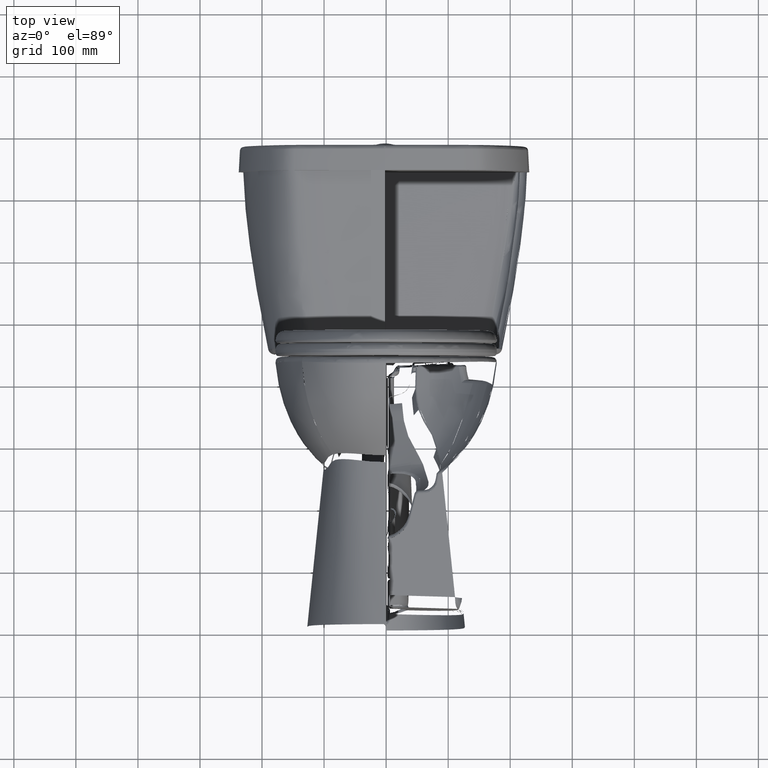
[diagram: clean part render]
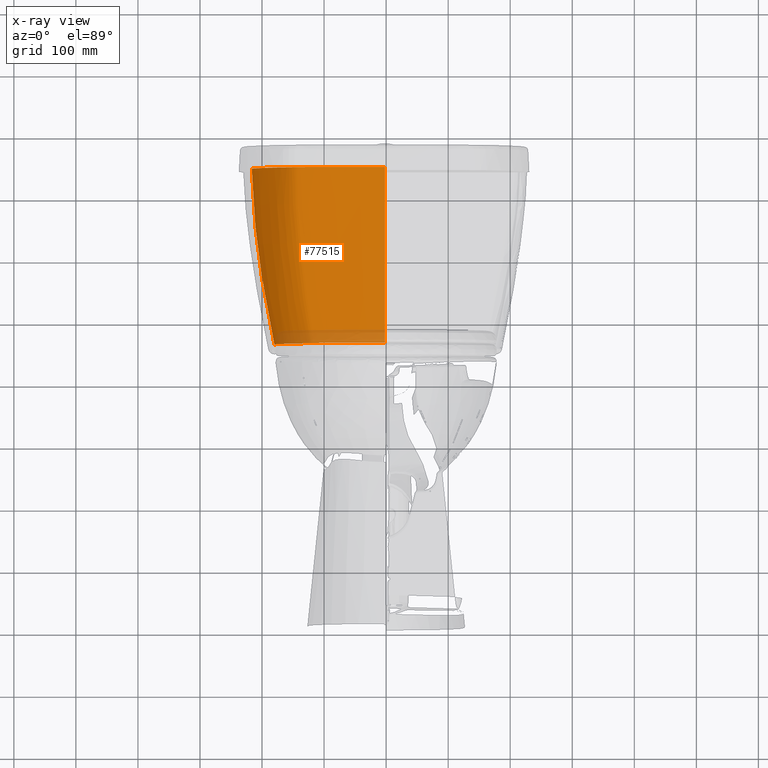
[diagram: x-ray — body ghosted, one internal face saturated and labeled with its STEP entity id]
A machine part, top view, then the same camera in x-ray: the body is ghosted and one INTERNAL B-rep face — a face not visible from any outside direction — is saturated and labeled: STEP entity #77515.
In plain terms, the highlighted face is a freeform B-spline surface patch.
Its self-contained STEP definition (entity closure, byte-faithful):
#97 = CARTESIAN_POINT ( 'NONE',  ( -4.417262187753443900, 8.835199273874794200, 29.55653996814981000 ) ) ;
#369 = CARTESIAN_POINT ( 'NONE',  ( -4.726152149578740400, 9.081204974369686800, 24.38536275855866000 ) ) ;
#410 = ORIENTED_EDGE ( 'NONE', *, *, #194658, .T. ) ;
#468 = CARTESIAN_POINT ( 'NONE',  ( -4.550617941806086400, 9.386305528800788200, 18.39885912971952900 ) ) ;
#734 = CARTESIAN_POINT ( 'NONE',  ( -4.278940042473919000, 8.824648377192396300, 29.55669977662424900 ) ) ;
#873 = CARTESIAN_POINT ( 'NONE',  ( -5.993922006456692500, 9.184879992817322100, 29.55320490457125600 ) ) ;
#941 = EDGE_CURVE ( 'NONE', #36166, #161220, #24696, .T. ) ;
#1007 = CARTESIAN_POINT ( 'NONE',  ( -7.261666225578741400, 13.83803789436968800, 19.29648230255866200 ) ) ;
#1141 = CARTESIAN_POINT ( 'NONE',  ( -0.06933588969177494100, 8.868155873617737900, 23.95379941567481200 ) ) ;
#1440 = ORIENTED_EDGE ( 'NONE', *, *, #74489, .T. ) ;
#1655 = CARTESIAN_POINT ( 'NONE',  ( -2.147176727581496400, 9.019511530369685600, 21.38579836755866000 ) ) ;
#1657 = CARTESIAN_POINT ( 'NONE',  ( -5.286015257712112900, 9.966031772616315000, 18.38191341893867700 ) ) ;
#1684 = CARTESIAN_POINT ( 'NONE',  ( -4.026841708629953900, 9.300854802114319100, 18.40285952947754900 ) ) ;
#1719 = CARTESIAN_POINT ( 'NONE',  ( -0.6127366742417331700, 9.085824356511343700, 18.40495721024449000 ) ) ;
#2001 = CARTESIAN_POINT ( 'NONE',  ( -0.4870684748382069200, 8.699424463805691200, 29.55456150517022000 ) ) ;
#2208 = EDGE_CURVE ( 'NONE', #111261, #14673, #64192, .T. ) ;
#2277 = CARTESIAN_POINT ( 'NONE',  ( -4.781477327578740800, 9.375351516369685000, 19.24935866055866300 ) ) ;
#2341 = CARTESIAN_POINT ( 'NONE',  ( -1.044151900040486200, 9.098049844229134200, 18.40476465880379900 ) ) ;
#2490 = ORIENTED_EDGE ( 'NONE', *, *, #66342, .T. ) ;
#2924 = CARTESIAN_POINT ( 'NONE',  ( -6.771842228578741200, 11.98856557136968500, 19.28742932755866200 ) ) ;
#3283 = CARTESIAN_POINT ( 'NONE',  ( -4.476880313307056300, 9.370054282243456700, 18.40011350073544700 ) ) ;
#3562 = CARTESIAN_POINT ( 'NONE',  ( -4.850973108578740400, 9.544801794369684300, 18.27914189755866300 ) ) ;
#3629 = CARTESIAN_POINT ( 'NONE',  ( -0.06687898313162316000, 9.079168769970769000, 18.40514471876067000 ) ) ;
#3630 = CARTESIAN_POINT ( 'NONE',  ( -6.953112045520100500, 10.40949517225543800, 29.55019068841947700 ) ) ;
#4251 = CARTESIAN_POINT ( 'NONE',  ( -2.635696419531892600, 8.741841311468068200, 29.55567267593109900 ) ) ;
#4561 = CARTESIAN_POINT ( 'NONE',  ( -5.019246347702710900, 8.888955014683535400, 29.55611445022103500 ) ) ;
#4695 = CARTESIAN_POINT ( 'NONE',  ( -2.302223418220548100, 9.156377341268365600, 18.40526930175008500 ) ) ;
#4870 = CARTESIAN_POINT ( 'NONE',  ( -4.594224303578740500, 9.411123767369684100, 18.25351353655866400 ) ) ;
#5300 = CARTESIAN_POINT ( 'NONE',  ( -0.06975181525807250300, 8.777751068589884300, 26.74822881916182000 ) ) ;
#5575 = CARTESIAN_POINT ( 'NONE',  ( -6.743481078138302100, 10.08172065734461700, 29.55010217595953700 ) ) ;
#5626 = EDGE_CURVE ( 'NONE', #160807, #95092, #155456, .T. ) ;
#6045 = VERTEX_POINT ( 'NONE', #168408 ) ;
#6079 = CARTESIAN_POINT ( 'NONE',  ( -5.701222970184550000, 9.010136209510987400, 29.55489257358420500 ) ) ;
#6156 = CARTESIAN_POINT ( 'NONE',  ( -4.405966024578741100, 9.366015904369685800, 18.24315959755865900 ) ) ;
#6487 = B_SPLINE_CURVE_WITH_KNOTS ( 'NONE', 3,
 ( #143076, #8040, #112908, #51946, #6079, #23105 ),
 .UNSPECIFIED., .F., .F.,
 ( 4, 2, 4 ),
 ( 0.0000000000000000000, 0.5000000000000000000, 1.000000000000000000 ),
 .UNSPECIFIED. ) ;
#6879 = CARTESIAN_POINT ( 'NONE',  ( -8.268173154851654200, 14.62575394245028300, 25.62698901064866100 ) ) ;
#6905 = CARTESIAN_POINT ( 'NONE',  ( -5.564959569414520000, 8.967024884283631500, 29.55566309722716400 ) ) ;
#6969 = VERTEX_POINT ( 'NONE', #143439 ) ;
#7525 = CARTESIAN_POINT ( 'NONE',  ( -8.269638196809486500, 14.62596688857144000, 25.64085137190551900 ) ) ;
#7554 = CARTESIAN_POINT ( 'NONE',  ( -5.593030429457607900, 8.974341410781960300, 29.55553402991164800 ) ) ;
#8040 = CARTESIAN_POINT ( 'NONE',  ( -5.634218406218884000, 8.986581406398876500, 29.55532335167465200 ) ) ;
#8173 = CARTESIAN_POINT ( 'NONE',  ( -8.515840962717151200, 14.68299359192766900, 29.08540297841443900 ) ) ;
#8427 = CARTESIAN_POINT ( 'NONE',  ( -5.388182492987549900, 8.933186725462634900, 29.55598421990289600 ) ) ;
#8461 = CARTESIAN_POINT ( 'NONE',  ( -7.565230813214938600, 11.59473743594560500, 29.55240527247246600 ) ) ;
#8797 = CARTESIAN_POINT ( 'NONE',  ( -6.308033708826381600, 9.504115083988910600, 29.55154324513583200 ) ) ;
#8825 = CARTESIAN_POINT ( 'NONE',  ( -8.067119218231061600, 14.60412180752426000, 23.94511155207169000 ) ) ;
#9196 = CARTESIAN_POINT ( 'NONE',  ( -5.132739143622255400, 9.796869057232875400, 18.38301660442515100 ) ) ;
#9417 = CARTESIAN_POINT ( 'NONE',  ( -3.353185906577966300, 9.231316932835634100, 18.40497884309920100 ) ) ;
#9462 = CARTESIAN_POINT ( 'NONE',  ( -7.635362155809605900, 14.58925611784779400, 21.14968522266265400 ) ) ;
#9552 = CARTESIAN_POINT ( 'NONE',  ( -5.767105375250555900, 10.56825423417031700, 18.38054243735387800 ) ) ;
#9631 = CARTESIAN_POINT ( 'NONE',  ( -5.677084550578740600, 9.021787339369685900, 28.82753652955866000 ) ) ;
#9786 = CARTESIAN_POINT ( 'NONE',  ( -4.284330810213469400, 9.335896085520213100, 18.40194068895603900 ) ) ;
#10138 = CARTESIAN_POINT ( 'NONE',  ( -3.001831426760241100, 8.754537339842750400, 29.55612341220197000 ) ) ;
#10277 = CARTESIAN_POINT ( 'NONE',  ( -0.5411044955814960900, 8.695272341369685500, 29.63269373055866000 ) ) ;
#10932 = CARTESIAN_POINT ( 'NONE',  ( -6.541727437578740200, 9.790227151369686400, 28.81755590555866700 ) ) ;
#11023 = CARTESIAN_POINT ( 'NONE',  ( -0.06846823717543432100, 8.968853144829148900, 21.17107659340039300 ) ) ;
#11038 = ORIENTED_EDGE ( 'NONE', *, *, #151937, .T. ) ;
#11130 = ORIENTED_EDGE ( 'NONE', *, *, #5626, .T. ) ;
#11144 = B_SPLINE_CURVE_WITH_KNOTS ( 'NONE', 3,
 ( #1719, #105938, #16176, #3629 ),
 .UNSPECIFIED., .F., .F.,
 ( 4, 4 ),
 ( 0.0000000000000000000, 0.9999999505521016700 ),
 .UNSPECIFIED. ) ;
#11430 = CARTESIAN_POINT ( 'NONE',  ( -7.085579152553150600, 14.59351282908907000, 18.37513363553937800 ) ) ;
#11594 = CARTESIAN_POINT ( 'NONE',  ( -3.273298411581496000, 8.792520270369685400, 28.82742994855866300 ) ) ;
#12067 = CARTESIAN_POINT ( 'NONE',  ( -7.580732472938875000, 14.58883198519878900, 20.83982022221812600 ) ) ;
#12228 = CARTESIAN_POINT ( 'NONE',  ( -5.158240198578740300, 8.998333090369685600, 27.18689202255866300 ) ) ;
#12256 = EDGE_CURVE ( 'NONE', #155654, #128064, #115465, .T. ) ;
#12434 = EDGE_CURVE ( 'NONE', #40944, #162635, #25355, .T. ) ;
#12649 = CARTESIAN_POINT ( 'NONE',  ( -4.582398009279478000, 9.395098269976554000, 18.39800244569450500 ) ) ;
#12871 = CARTESIAN_POINT ( 'NONE',  ( -7.080850265989107100, 14.22670205826152500, 18.37596809206920400 ) ) ;
#12880 = CARTESIAN_POINT ( 'NONE',  ( -6.936121323578740700, 10.42013532836968500, 27.18807161055866200 ) ) ;
#13416 = B_SPLINE_CURVE_WITH_KNOTS ( 'NONE', 3,
 ( #38947, #172041, #97943, #113034 ),
 .UNSPECIFIED., .F., .F.,
 ( 4, 4 ),
 ( 0.0000000000000000000, 1.000000000000000000 ),
 .UNSPECIFIED. ) ;
#13536 = CARTESIAN_POINT ( 'NONE',  ( -8.308870624578741400, 13.88764930936968700, 27.19387403655866100 ) ) ;
#13800 = CARTESIAN_POINT ( 'NONE',  ( -2.066876061875919700, 8.726112465497536200, 29.55505119435447600 ) ) ;
#14048 = CARTESIAN_POINT ( 'NONE',  ( -7.012667880179735700, 13.51943146230926200, 18.37744735951051900 ) ) ;
#14178 = CARTESIAN_POINT ( 'NONE',  ( -3.225616492581496100, 8.857666271369685900, 27.18490226455866200 ) ) ;
#14673 = VERTEX_POINT ( 'NONE', #59903 ) ;
#14831 = CARTESIAN_POINT ( 'NONE',  ( -6.340303470578740000, 9.615395643369685900, 27.19276521155866200 ) ) ;
#14988 = CARTESIAN_POINT ( 'NONE',  ( -5.820563128046619500, 9.067157067053484500, 29.55404106676773100 ) ) ;
#15366 = CARTESIAN_POINT ( 'NONE',  ( -5.332104981234194500, 10.01875782867712900, 18.38165397847801000 ) ) ;
#15469 = CARTESIAN_POINT ( 'NONE',  ( -6.359890582578740000, 10.48456457236968700, 21.42962279955866100 ) ) ;
#15606 = CARTESIAN_POINT ( 'NONE',  ( -0.06977486976558999700, 8.821630473137648900, 25.34970909367833900 ) ) ;
#15760 = EDGE_CURVE ( 'NONE', #186058, #69820, #30429, .T. ) ;
#15838 = CARTESIAN_POINT ( 'NONE',  ( -3.629239517476766900, 8.783314053335498500, 29.55668547703504200 ) ) ;
#15946 = B_SPLINE_CURVE_WITH_KNOTS ( 'NONE', 3,
 ( #26366, #175143, #76056, #179700 ),
 .UNSPECIFIED., .F., .F.,
 ( 4, 4 ),
 ( 0.0000000000000000000, 1.000000000000000000 ),
 .UNSPECIFIED. ) ;
#16079 = CARTESIAN_POINT ( 'NONE',  ( -3.232857355567400500, 9.221246130704944500, 18.40524541539265300 ) ) ;
#16094 = B_SPLINE_CURVE_WITH_KNOTS ( 'NONE', 3,
 ( #50367, #123828, #138263, #33358 ),
 .UNSPECIFIED., .F., .F.,
 ( 4, 4 ),
 ( 0.0000000000000000000, 1.000000000000000000 ),
 .UNSPECIFIED. ) ;
#16108 = CARTESIAN_POINT ( 'NONE',  ( -7.152664261578740600, 11.98558548536968600, 21.42919151555866400 ) ) ;
#16176 = CARTESIAN_POINT ( 'NONE',  ( -0.1975648495858503000, 9.079313358093433100, 18.40513700277325200 ) ) ;
#16244 = CARTESIAN_POINT ( 'NONE',  ( -4.867996858865503800, 9.540942073929931800, 18.38741586388991300 ) ) ;
#16572 = B_SPLINE_CURVE_WITH_KNOTS ( 'NONE', 3,
 ( #41538, #178489, #44764, #75517 ),
 .UNSPECIFIED., .F., .F.,
 ( 4, 4 ),
 ( 0.0000000000000000000, 1.000000000000000000 ),
 .UNSPECIFIED. ) ;
#16674 = ORIENTED_EDGE ( 'NONE', *, *, #121684, .T. ) ;
#16752 = CARTESIAN_POINT ( 'NONE',  ( -5.339595521578739400, 9.787340198369685500, 19.28249868555866400 ) ) ;
#16791 = B_SPLINE_CURVE_WITH_KNOTS ( 'NONE', 3,
 ( #79250, #66126, #25550, #146165 ),
 .UNSPECIFIED., .F., .F.,
 ( 4, 4 ),
 ( 0.0000000000000000000, 1.000000000000000000 ),
 .UNSPECIFIED. ) ;
#17075 = CARTESIAN_POINT ( 'NONE',  ( -4.667566845165105800, 8.855730611929926600, 29.55633320850923300 ) ) ;
#17090 = CARTESIAN_POINT ( 'NONE',  ( -0.6985461206657501700, 8.701673856666468900, 29.55456928334762500 ) ) ;
#17197 = ORIENTED_EDGE ( 'NONE', *, *, #164299, .T. ) ;
#17380 = CARTESIAN_POINT ( 'NONE',  ( -5.504730794578740900, 9.965544695369684900, 19.28533930955866200 ) ) ;
#17810 = CARTESIAN_POINT ( 'NONE',  ( -7.325578228831249200, 11.08869243613752300, 29.55141645699173100 ) ) ;
#18031 = CARTESIAN_POINT ( 'NONE',  ( 0.006581893418188977500, 8.851642629369685300, 24.37971165755866200 ) ) ;
#18587 = VERTEX_POINT ( 'NONE', #138114 ) ;
#18676 = CARTESIAN_POINT ( 'NONE',  ( -6.799831006578740400, 12.59621126436968700, 18.29748167055866000 ) ) ;
#19004 = CARTESIAN_POINT ( 'NONE',  ( -4.959680411745575100, 8.882902861378701300, 29.55613744018662100 ) ) ;
#20017 = CARTESIAN_POINT ( 'NONE',  ( -6.677326712413080400, 9.986927948106508500, 29.55019565287834400 ) ) ;
#20721 = EDGE_CURVE ( 'NONE', #117744, #27879, #134717, .T. ) ;
#20846 = VERTEX_POINT ( 'NONE', #189952 ) ;
#20860 = VERTEX_POINT ( 'NONE', #174877 ) ;
#21070 = EDGE_CURVE ( 'NONE', #14673, #38397, #167103, .T. ) ;
#21303 = CARTESIAN_POINT ( 'NONE',  ( -8.391850291897107200, 14.64757322736378800, 26.94856130231164200 ) ) ;
#21686 = CARTESIAN_POINT ( 'NONE',  ( -4.140285619023616800, 8.814950337761841200, 29.55670074416850600 ) ) ;
#22323 = VERTEX_POINT ( 'NONE', #81090 ) ;
#22491 = CARTESIAN_POINT ( 'NONE',  ( -2.635696419531892600, 8.741841311468068200, 29.55567267593109900 ) ) ;
#22592 = CARTESIAN_POINT ( 'NONE',  ( -8.184693972926856600, 14.61488958661455400, 24.87858013061835300 ) ) ;
#23105 = CARTESIAN_POINT ( 'NONE',  ( -5.719400801736013000, 9.017779194289863300, 29.55476069995829000 ) ) ;
#23792 = VERTEX_POINT ( 'NONE', #62751 ) ;
#23883 = CARTESIAN_POINT ( 'NONE',  ( -8.067066248318367300, 14.60411779700153400, 23.94471251384044700 ) ) ;
#24209 = CARTESIAN_POINT ( 'NONE',  ( -4.146236863885847300, 9.316520684413644600, 18.40251462936850000 ) ) ;
#24347 = ORIENTED_EDGE ( 'NONE', *, *, #119465, .T. ) ;
#24527 = CARTESIAN_POINT ( 'NONE',  ( -7.636325129333648900, 14.58926363674536800, 21.15514877038469900 ) ) ;
#24696 = B_SPLINE_CURVE_WITH_KNOTS ( 'NONE', 3,
 ( #175737, #131177, #85949, #71474 ),
 .UNSPECIFIED., .F., .F.,
 ( 4, 4 ),
 ( 0.0000000000000000000, 1.000000000000000000 ),
 .UNSPECIFIED. ) ;
#24704 = CARTESIAN_POINT ( 'NONE',  ( -7.221710644578740500, 10.87768905936968400, 29.62054523455866200 ) ) ;
#24917 = B_SPLINE_CURVE_WITH_KNOTS ( 'NONE', 3,
 ( #110186, #109530, #125925, #184265, #51810, #81936 ),
 .UNSPECIFIED., .F., .F.,
 ( 4, 2, 4 ),
 ( 0.0000000000000000000, 0.5000000000000000000, 1.000000000000000000 ),
 .UNSPECIFIED. ) ;
#25219 = VERTEX_POINT ( 'NONE', #110113 ) ;
#25355 = B_SPLINE_CURVE_WITH_KNOTS ( 'NONE', 3,
 ( #95001, #155993, #66141, #37302 ),
 .UNSPECIFIED., .F., .F.,
 ( 4, 4 ),
 ( 0.0000000000000000000, 1.000000000000000000 ),
 .UNSPECIFIED. ) ;
#25364 = CARTESIAN_POINT ( 'NONE',  ( -6.971223616578740200, 10.42133909236968500, 28.81562318355866400 ) ) ;
#25476 = B_SPLINE_CURVE_WITH_KNOTS ( 'NONE', 3,
 ( #55586, #86407, #100804, #116534, #40511, #145414 ),
 .UNSPECIFIED., .F., .F.,
 ( 4, 2, 4 ),
 ( 0.0000000000000000000, 0.5000000000000000000, 1.000000000000000000 ),
 .UNSPECIFIED. ) ;
#25528 = ORIENTED_EDGE ( 'NONE', *, *, #53330, .T. ) ;
#25550 = CARTESIAN_POINT ( 'NONE',  ( -6.376039596943788200, 11.55928583682334200, 18.38134262127045900 ) ) ;
#25797 = CARTESIAN_POINT ( 'NONE',  ( -8.482646217280597900, 14.42031918908221000, 29.55340962606145900 ) ) ;
#25820 = CARTESIAN_POINT ( 'NONE',  ( -6.369992918184039800, 9.578696247736235800, 29.55117137763229000 ) ) ;
#25847 = CARTESIAN_POINT ( 'NONE',  ( -7.510491384747820300, 14.58865411958089500, 20.45340443194434600 ) ) ;
#26366 = CARTESIAN_POINT ( 'NONE',  ( -3.779953884164973100, 9.271666381298688400, 18.40370294031455600 ) ) ;
#26456 = CARTESIAN_POINT ( 'NONE',  ( -7.012667880179735700, 13.51943146230926200, 18.37744735951051900 ) ) ;
#26605 = CARTESIAN_POINT ( 'NONE',  ( -6.173214869102259300, 9.352186803466402400, 29.55238183469565200 ) ) ;
#26645 = CARTESIAN_POINT ( 'NONE',  ( -7.086305349610128700, 14.43080584027599000, 18.37551948695604400 ) ) ;
#26659 = CARTESIAN_POINT ( 'NONE',  ( -5.831453189578740000, 9.069510887369684600, 29.63010582855866600 ) ) ;
#27102 = ORIENTED_EDGE ( 'NONE', *, *, #191177, .T. ) ;
#27259 = CARTESIAN_POINT ( 'NONE',  ( -6.146212672660646500, 9.324645746976742100, 29.55250300608899700 ) ) ;
#27277 = B_SPLINE_CURVE_WITH_KNOTS ( 'NONE', 3,
 ( #9196, #114035, #187495, #112123 ),
 .UNSPECIFIED., .F., .F.,
 ( 4, 4 ),
 ( 0.0000000000000000000, 1.000000000000000000 ),
 .UNSPECIFIED. ) ;
#27310 = CARTESIAN_POINT ( 'NONE',  ( -5.928716911578740100, 9.229910081369686400, 27.19485179055866600 ) ) ;
#27879 = VERTEX_POINT ( 'NONE', #60640 ) ;
#27928 = B_SPLINE_CURVE_WITH_KNOTS ( 'NONE', 3,
 ( #79649, #124916, #187151, #6905, #7554, #141940 ),
 .UNSPECIFIED., .F., .F.,
 ( 4, 2, 4 ),
 ( 0.0000000000000000000, 0.5000000000000000000, 1.000000000000000000 ),
 .UNSPECIFIED. ) ;
#27950 = CARTESIAN_POINT ( 'NONE',  ( -7.065420331397895400, 13.98169537435549600, 18.37648399857435800 ) ) ;
#27961 = CARTESIAN_POINT ( 'NONE',  ( -8.078467694578741000, 13.85076794236968400, 24.41370424155866200 ) ) ;
#28145 = CARTESIAN_POINT ( 'NONE',  ( -4.849631595566531700, 9.526219874325695600, 18.38789459639665200 ) ) ;
#28451 = CARTESIAN_POINT ( 'NONE',  ( -6.621296558004071500, 12.09614952533262400, 18.38097898099840000 ) ) ;
#28600 = CARTESIAN_POINT ( 'NONE',  ( -7.936700316578741100, 12.61928679336968500, 27.18642852755865700 ) ) ;
#29126 = EDGE_CURVE ( 'NONE', #63448, #6969, #57411, .T. ) ;
#29245 = CARTESIAN_POINT ( 'NONE',  ( 0.01090556941818897700, 8.763415172369686700, 27.17884164755866300 ) ) ;
#29526 = CARTESIAN_POINT ( 'NONE',  ( -2.227064563611026700, 8.730234553777833600, 29.55521162041652500 ) ) ;
#29626 = CARTESIAN_POINT ( 'NONE',  ( -4.554802160429108700, 8.846481387342471700, 29.55641770552757600 ) ) ;
#29908 = CARTESIAN_POINT ( 'NONE',  ( -7.230946286578740600, 11.34361615136968700, 24.40336193455866000 ) ) ;
#30094 = CARTESIAN_POINT ( 'NONE',  ( -3.942907211298062500, 9.290342512793127800, 18.40316363402902400 ) ) ;
#30410 = CARTESIAN_POINT ( 'NONE',  ( -6.736282811303054200, 12.40060890315948000, 18.38036480356576900 ) ) ;
#30421 = CARTESIAN_POINT ( 'NONE',  ( -5.927944756330495200, 9.134615975996890600, 29.55345684331037100 ) ) ;
#30429 = B_SPLINE_CURVE_WITH_KNOTS ( 'NONE', 3,
 ( #151160, #138654, #181935, #76372 ),
 .UNSPECIFIED., .F., .F.,
 ( 4, 4 ),
 ( 0.0000000000000000000, 1.000000000000000000 ),
 .UNSPECIFIED. ) ;
#30559 = CARTESIAN_POINT ( 'NONE',  ( -4.429408332578740100, 9.306111238369686200, 19.23800607055866200 ) ) ;
#31133 = CARTESIAN_POINT ( 'NONE',  ( -3.106235323199040700, 9.211382932808387400, 18.40540422632592800 ) ) ;
#31170 = CARTESIAN_POINT ( 'NONE',  ( -6.115240656578740700, 10.15510727036968700, 21.42788619755866700 ) ) ;
#31792 = CARTESIAN_POINT ( 'NONE',  ( -6.477858297578739800, 11.38436460036968400, 19.28806646655866100 ) ) ;
#31820 = CARTESIAN_POINT ( 'NONE',  ( -0.06993347243681391500, 8.802983037975444300, 25.92597599703033500 ) ) ;
#32206 = CARTESIAN_POINT ( 'NONE',  ( -7.427079893416992800, 11.29536015597559900, 29.55186505736178800 ) ) ;
#32428 = CARTESIAN_POINT ( 'NONE',  ( -0.5151546195814961100, 8.850957161369684900, 24.37974454455866200 ) ) ;
#32483 = CARTESIAN_POINT ( 'NONE',  ( -1.262864671300399500, 8.709684228032118700, 29.55461837463346700 ) ) ;
#32945 = CARTESIAN_POINT ( 'NONE',  ( -7.278680333683935200, 10.99519423398150800, 29.55121794605412700 ) ) ;
#33071 = EDGE_CURVE ( 'NONE', #175537, #110033, #146466, .T. ) ;
#33078 = CARTESIAN_POINT ( 'NONE',  ( -5.322561117578740800, 9.389001357369686200, 21.41348956455866000 ) ) ;
#33187 = ORIENTED_EDGE ( 'NONE', *, *, #35828, .T. ) ;
#33358 = CARTESIAN_POINT ( 'NONE',  ( -6.475850406085276000, 11.76485771921991800, 18.38132187536365300 ) ) ;
#33720 = CARTESIAN_POINT ( 'NONE',  ( -4.257243259578740600, 9.341307604369685400, 18.24012575255866200 ) ) ;
#34387 = CARTESIAN_POINT ( 'NONE',  ( -5.127885604578740900, 9.813498909369684500, 18.29075047455866400 ) ) ;
#34493 = VERTEX_POINT ( 'NONE', #95426 ) ;
#34590 = CARTESIAN_POINT ( 'NONE',  ( -0.06951906611264802000, 8.852213104962467900, 24.41867190946838000 ) ) ;
#34708 = CARTESIAN_POINT ( 'NONE',  ( -4.783179061513070700, 8.865811822438969300, 29.55622982239293300 ) ) ;
#34763 = CARTESIAN_POINT ( 'NONE',  ( -5.820563128046619500, 9.067157067053484500, 29.55404106676773100 ) ) ;
#34800 = CARTESIAN_POINT ( 'NONE',  ( -0.06915585233496257500, 8.753687960185088100, 27.54644208565342500 ) ) ;
#34947 = B_SPLINE_CURVE_WITH_KNOTS ( 'NONE', 3,
 ( #30410, #89382, #105728, #28451 ),
 .UNSPECIFIED., .F., .F.,
 ( 4, 4 ),
 ( 0.0000000000000000000, 1.000000000000000000 ),
 .UNSPECIFIED. ) ;
#35013 = CARTESIAN_POINT ( 'NONE',  ( -6.948046812578740000, 13.20938573836968600, 18.30181147155866100 ) ) ;
#35354 = VERTEX_POINT ( 'NONE', #178430 ) ;
#35596 = EDGE_CURVE ( 'NONE', #58988, #149119, #148670, .T. ) ;
#35735 = CARTESIAN_POINT ( 'NONE',  ( -4.554802160429108700, 8.846481387342471700, 29.55641770552757600 ) ) ;
#35828 = EDGE_CURVE ( 'NONE', #126901, #182558, #38086, .T. ) ;
#36166 = VERTEX_POINT ( 'NONE', #89717 ) ;
#36355 = CARTESIAN_POINT ( 'NONE',  ( -8.244217825799955400, 14.62238742950110500, 25.40427810283339100 ) ) ;
#36558 = ORIENTED_EDGE ( 'NONE', *, *, #106839, .T. ) ;
#36921 = CARTESIAN_POINT ( 'NONE',  ( -0.6127366742417331700, 9.085824356511343700, 18.40495721024449000 ) ) ;
#37007 = CARTESIAN_POINT ( 'NONE',  ( -8.067860576489462000, 14.60417800202395500, 23.95069810029355000 ) ) ;
#37302 = CARTESIAN_POINT ( 'NONE',  ( -0.06933588969177494100, 8.868155873617737900, 23.95379941567481200 ) ) ;
#37337 = CARTESIAN_POINT ( 'NONE',  ( -4.338622745956652900, 9.344776663881351200, 18.40153297483426800 ) ) ;
#37654 = CARTESIAN_POINT ( 'NONE',  ( -8.067043546252158100, 14.60411607835048300, 23.94454149749541800 ) ) ;
#37911 = CARTESIAN_POINT ( 'NONE',  ( -5.261055767547192700, 8.916222075628029500, 29.55604325844962700 ) ) ;
#38081 = ORIENTED_EDGE ( 'NONE', *, *, #94092, .T. ) ;
#38086 = B_SPLINE_CURVE_WITH_KNOTS ( 'NONE', 3,
 ( #3283, #48512, #183560, #108807 ),
 .UNSPECIFIED., .F., .F.,
 ( 4, 4 ),
 ( 0.0000000000000000000, 1.000000000000000000 ),
 .UNSPECIFIED. ) ;
#38294 = CARTESIAN_POINT ( 'NONE',  ( -8.305978308442229600, 14.63153064617656300, 25.99431165160909200 ) ) ;
#38397 = VERTEX_POINT ( 'NONE', #157419 ) ;
#38751 = B_SPLINE_CURVE_WITH_KNOTS ( 'NONE', 3,
 ( #51376, #142525, #116883, #9417 ),
 .UNSPECIFIED., .F., .F.,
 ( 4, 4 ),
 ( 0.0000000000000000000, 1.000000000000000000 ),
 .UNSPECIFIED. ) ;
#38937 = CARTESIAN_POINT ( 'NONE',  ( -7.998462636884526400, 12.65377571765934500, 29.55336295386297300 ) ) ;
#38947 = CARTESIAN_POINT ( 'NONE',  ( -6.818443129510067800, 12.65332892248005200, 18.37971462215191900 ) ) ;
#38953 = CARTESIAN_POINT ( 'NONE',  ( -8.267207288122271800, 14.62561388858655500, 25.61786128737159600 ) ) ;
#39121 = CARTESIAN_POINT ( 'NONE',  ( -6.534268815578739600, 9.787057247369684600, 29.61871674255866400 ) ) ;
#39368 = VERTEX_POINT ( 'NONE', #166417 ) ;
#39576 = CARTESIAN_POINT ( 'NONE',  ( -6.617042504172750300, 9.901547508012878800, 29.55029248736336500 ) ) ;
#39602 = CARTESIAN_POINT ( 'NONE',  ( -7.778846330663365700, 14.59127436516200900, 21.99349723091641500 ) ) ;
#39767 = CARTESIAN_POINT ( 'NONE',  ( -6.373100734578740900, 9.580065434369686300, 29.62077681155866300 ) ) ;
#39857 = CARTESIAN_POINT ( 'NONE',  ( -5.411747604266300200, 8.936885549641855800, 29.55595998690782300 ) ) ;
#40242 = CARTESIAN_POINT ( 'NONE',  ( -8.044359046513662300, 12.78093031775788400, 29.55338256568600400 ) ) ;
#40425 = CARTESIAN_POINT ( 'NONE',  ( -6.082077904578740800, 9.270710408369685900, 28.82420983455866500 ) ) ;
#40511 = CARTESIAN_POINT ( 'NONE',  ( -6.122245295823998600, 9.300199704345631700, 29.55263353681537500 ) ) ;
#40944 = VERTEX_POINT ( 'NONE', #11023 ) ;
#41076 = CARTESIAN_POINT ( 'NONE',  ( -5.910525803578740200, 9.119117109369684100, 29.62875175655866000 ) ) ;
#41538 = CARTESIAN_POINT ( 'NONE',  ( -0.6985461206657501700, 8.701673856666468900, 29.55456928334762500 ) ) ;
#41566 = CARTESIAN_POINT ( 'NONE',  ( -7.635263825910388200, 14.58925535380946000, 21.14912746409654400 ) ) ;
#42371 = CARTESIAN_POINT ( 'NONE',  ( -8.133698240578741700, 14.33459839636968700, 24.41880363355866400 ) ) ;
#42557 = CARTESIAN_POINT ( 'NONE',  ( -4.778142366243967500, 9.476695604778555500, 18.39038141588191900 ) ) ;
#42671 = VERTEX_POINT ( 'NONE', #107792 ) ;
#42673 = CARTESIAN_POINT ( 'NONE',  ( -1.211506579296367300, 9.103890511486374800, 18.40472421892507200 ) ) ;
#42814 = ORIENTED_EDGE ( 'NONE', *, *, #185613, .T. ) ;
#42824 = CARTESIAN_POINT ( 'NONE',  ( -4.338622745956652900, 9.344776663881351200, 18.40153297483426800 ) ) ;
#43007 = CARTESIAN_POINT ( 'NONE',  ( -6.115288420578741200, 9.670045738369685400, 24.40510743255866200 ) ) ;
#43106 = CARTESIAN_POINT ( 'NONE',  ( -5.700553427224796200, 10.47602712013150000, 18.38055061464174100 ) ) ;
#43340 = ORIENTED_EDGE ( 'NONE', *, *, #33071, .T. ) ;
#43638 = CARTESIAN_POINT ( 'NONE',  ( -6.502420761578741300, 9.805032900369685200, 27.19118125755866100 ) ) ;
#44025 = EDGE_CURVE ( 'NONE', #42671, #82291, #106230, .T. ) ;
#44078 = CARTESIAN_POINT ( 'NONE',  ( -4.661330385259646800, 9.420340280250533400, 18.39550941275556500 ) ) ;
#44303 = CARTESIAN_POINT ( 'NONE',  ( -7.518079255578741500, 11.98272687536968600, 24.40233627555866000 ) ) ;
#44764 = CARTESIAN_POINT ( 'NONE',  ( -1.067446911892092800, 8.706297446243828700, 29.55457341063766600 ) ) ;
#44966 = CARTESIAN_POINT ( 'NONE',  ( -4.907854248578740200, 9.100292257369684300, 24.38597390755866500 ) ) ;
#45459 = CARTESIAN_POINT ( 'NONE',  ( -5.959776558040634800, 9.157940270296446500, 29.55333343176346300 ) ) ;
#45595 = CARTESIAN_POINT ( 'NONE',  ( -3.894050025581496000, 9.241390860369685700, 19.23358920255866200 ) ) ;
#45598 = CARTESIAN_POINT ( 'NONE',  ( -5.132739143622255400, 9.796869057232875400, 18.38301660442515100 ) ) ;
#45943 = ORIENTED_EDGE ( 'NONE', *, *, #173068, .T. ) ;
#46237 = CARTESIAN_POINT ( 'NONE',  ( -5.172177133578740500, 9.620604921369686500, 19.27776662555866200 ) ) ;
#46574 = CARTESIAN_POINT ( 'NONE',  ( -8.301275010762681800, 13.60385250022317300, 29.55344698607701700 ) ) ;
#46865 = CARTESIAN_POINT ( 'NONE',  ( -3.628599609581496300, 9.217553814369685100, 19.23149587755866100 ) ) ;
#46994 = EDGE_CURVE ( 'NONE', #20860, #111261, #92893, .T. ) ;
#47388 = ORIENTED_EDGE ( 'NONE', *, *, #145561, .T. ) ;
#47464 = ORIENTED_EDGE ( 'NONE', *, *, #15760, .T. ) ;
#47495 = CARTESIAN_POINT ( 'NONE',  ( -5.416075561578741000, 9.453985696369684900, 21.41662730555865900 ) ) ;
#48134 = CARTESIAN_POINT ( 'NONE',  ( -3.433147111581496400, 9.116589816369685900, 21.38534056055866400 ) ) ;
#48512 = CARTESIAN_POINT ( 'NONE',  ( -4.437422768304783100, 9.361890325090007200, 18.40067616139298700 ) ) ;
#48781 = CARTESIAN_POINT ( 'NONE',  ( -2.551365209581496300, 9.177840641369686000, 18.23045943855866100 ) ) ;
#49040 = CARTESIAN_POINT ( 'NONE',  ( -3.901393004511006800, 9.285435475783195600, 18.40326791665552300 ) ) ;
#49167 = CARTESIAN_POINT ( 'NONE',  ( -5.741802787177817000, 9.027475447594167000, 29.55459265388001100 ) ) ;
#49714 = B_SPLINE_CURVE_WITH_KNOTS ( 'NONE', 3,
 ( #150679, #119875, #30094, #49040 ),
 .UNSPECIFIED., .F., .F.,
 ( 4, 4 ),
 ( 0.0000000000000000000, 1.000000000000000000 ),
 .UNSPECIFIED. ) ;
#50367 = CARTESIAN_POINT ( 'NONE',  ( -6.621296558004071500, 12.09614952533262400, 18.38097898099840000 ) ) ;
#51176 = EDGE_CURVE ( 'NONE', #74345, #111416, #95101, .T. ) ;
#51376 = CARTESIAN_POINT ( 'NONE',  ( -3.654933279028351300, 9.258697916384601700, 18.40413521973621900 ) ) ;
#51425 = CARTESIAN_POINT ( 'NONE',  ( -8.524621089649386400, 14.68906664165395200, 29.55325609488934500 ) ) ;
#51743 = EDGE_CURVE ( 'NONE', #18587, #85488, #168625, .T. ) ;
#51810 = CARTESIAN_POINT ( 'NONE',  ( -4.735500209976510900, 9.452443978307664800, 18.39235071169052600 ) ) ;
#51946 = CARTESIAN_POINT ( 'NONE',  ( -5.683867890731239200, 9.003521196084165000, 29.55501890891819600 ) ) ;
#52714 = CARTESIAN_POINT ( 'NONE',  ( -8.057588876724032900, 14.60339590343676800, 23.87276323644907100 ) ) ;
#52898 = B_SPLINE_CURVE_WITH_KNOTS ( 'NONE', 3,
 ( #117406, #164579, #72794, #89829, #42673, #118689 ),
 .UNSPECIFIED., .F., .F.,
 ( 4, 2, 4 ),
 ( 0.0000000000000000000, 0.5000000000000000000, 1.000000000000000000 ),
 .UNSPECIFIED. ) ;
#53165 = EDGE_CURVE ( 'NONE', #95092, #25219, #58038, .T. ) ;
#53330 = EDGE_CURVE ( 'NONE', #148337, #6045, #110861, .T. ) ;
#53378 = CARTESIAN_POINT ( 'NONE',  ( -8.419329823930914000, 14.65377380018004600, 27.30785912539552400 ) ) ;
#53728 = CARTESIAN_POINT ( 'NONE',  ( -6.899049307367363300, 12.93945565046422400, 18.37893285104695500 ) ) ;
#54023 = CARTESIAN_POINT ( 'NONE',  ( -8.000614479604903900, 14.59966003604273300, 23.45487711608846100 ) ) ;
#54187 = CARTESIAN_POINT ( 'NONE',  ( -5.406188118578740800, 8.960831090369685700, 28.82790354655865900 ) ) ;
#54223 = CARTESIAN_POINT ( 'NONE',  ( -0.06687898313162316000, 9.079168769970769000, 18.40514471876067000 ) ) ;
#54640 = CARTESIAN_POINT ( 'NONE',  ( -6.338909941460377300, 9.540727980331952900, 29.55136265229586800 ) ) ;
#54840 = CARTESIAN_POINT ( 'NONE',  ( -5.565146823578740700, 8.989909495369685600, 28.82813212655866100 ) ) ;
#54948 = CARTESIAN_POINT ( 'NONE',  ( -7.780676338537959100, 12.09466231499632700, 29.55305117160013100 ) ) ;
#55397 = ORIENTED_EDGE ( 'NONE', *, *, #152531, .T. ) ;
#55493 = CARTESIAN_POINT ( 'NONE',  ( -6.214146798578740400, 9.399507022369686400, 28.82263768855866100 ) ) ;
#55586 = CARTESIAN_POINT ( 'NONE',  ( -5.993922006456692500, 9.184879992817322100, 29.55320490457125600 ) ) ;
#55973 = CARTESIAN_POINT ( 'NONE',  ( -7.635775005555621500, 14.58925933326115000, 21.15202729663917900 ) ) ;
#55982 = ORIENTED_EDGE ( 'NONE', *, *, #93930, .T. ) ;
#56132 = CARTESIAN_POINT ( 'NONE',  ( -3.272275438581496100, 8.759730096369684900, 29.63904470355866000 ) ) ;
#56728 = CARTESIAN_POINT ( 'NONE',  ( -6.281152038012914200, 9.472238898213625200, 29.55170385305989100 ) ) ;
#56752 = CARTESIAN_POINT ( 'NONE',  ( -5.767105375250555900, 10.56825423417031700, 18.38054243735387800 ) ) ;
#56781 = CARTESIAN_POINT ( 'NONE',  ( -8.488185543578740800, 14.41536423936968500, 29.62840577355866500 ) ) ;
#57411 = B_SPLINE_CURVE_WITH_KNOTS ( 'NONE', 3,
 ( #180760, #165689, #76476, #16244 ),
 .UNSPECIFIED., .F., .F.,
 ( 4, 4 ),
 ( 0.0000000000000000000, 1.000000000000000000 ),
 .UNSPECIFIED. ) ;
#57417 = CARTESIAN_POINT ( 'NONE',  ( -2.301444378581496000, 8.910133370369685200, 24.38209875455866200 ) ) ;
#57497 = CARTESIAN_POINT ( 'NONE',  ( -5.381146446346147800, 10.07598887249986700, 18.38142111032881200 ) ) ;
#57531 = CARTESIAN_POINT ( 'NONE',  ( -5.442957464946727200, 10.14866582597325000, 18.38113521824851300 ) ) ;
#58038 = B_SPLINE_CURVE_WITH_KNOTS ( 'NONE', 3,
 ( #74944, #135284, #179847, #180490, #30421, #45459, #150362, #873 ),
 .UNSPECIFIED., .F., .F.,
 ( 4, 2, 2, 4 ),
 ( 0.0000000000000000000, 0.4999999999999998900, 0.7499999999999998900, 1.000000000000000000 ),
 .UNSPECIFIED. ) ;
#58073 = CARTESIAN_POINT ( 'NONE',  ( -5.086141625578740400, 9.121677021369686500, 24.38700027555865900 ) ) ;
#58128 = CARTESIAN_POINT ( 'NONE',  ( -6.228221446471201800, 11.28499823217070200, 18.38113908257238500 ) ) ;
#58517 = VERTEX_POINT ( 'NONE', #75174 ) ;
#58711 = CARTESIAN_POINT ( 'NONE',  ( -6.283976215578739800, 9.848948840369685000, 24.40556244755866200 ) ) ;
#58988 = VERTEX_POINT ( 'NONE', #157317 ) ;
#59323 = CARTESIAN_POINT ( 'NONE',  ( -2.973579358211415600, 9.201575221427198400, 18.40547989807677400 ) ) ;
#59362 = CARTESIAN_POINT ( 'NONE',  ( -5.682907937578740100, 9.302785028369685300, 24.40237309755866200 ) ) ;
#59810 = ORIENTED_EDGE ( 'NONE', *, *, #174439, .T. ) ;
#59903 = CARTESIAN_POINT ( 'NONE',  ( -3.001831426760241100, 8.754537339842750400, 29.55612341220197000 ) ) ;
#60013 = CARTESIAN_POINT ( 'NONE',  ( -6.739909187578740900, 10.44362218536968700, 24.40531811455866100 ) ) ;
#60017 = CARTESIAN_POINT ( 'NONE',  ( -5.164408039563470600, 9.830906364197799600, 18.38273339631636800 ) ) ;
#60361 = CARTESIAN_POINT ( 'NONE',  ( -4.723202989058941100, 9.446489297934100200, 18.39292338191500400 ) ) ;
#60536 = EDGE_CURVE ( 'NONE', #6045, #22323, #108169, .T. ) ;
#60640 = CARTESIAN_POINT ( 'NONE',  ( -5.431208907070853800, 8.940150128405180800, 29.55593738302006600 ) ) ;
#60681 = CARTESIAN_POINT ( 'NONE',  ( -7.389950541578739900, 12.60832113336968500, 21.43150715055865900 ) ) ;
#61307 = CARTESIAN_POINT ( 'NONE',  ( -4.850048919578740400, 9.397876974369685500, 19.25546760355866400 ) ) ;
#61659 = CARTESIAN_POINT ( 'NONE',  ( -8.336325064012518400, 13.74278973951596500, 29.55345522512912000 ) ) ;
#61945 = CARTESIAN_POINT ( 'NONE',  ( -2.653136275581496700, 9.145316973369684600, 19.23010460155866500 ) ) ;
#61978 = CARTESIAN_POINT ( 'NONE',  ( -4.146236863885847300, 9.316520684413644600, 18.40251462936850000 ) ) ;
#61991 = VERTEX_POINT ( 'NONE', #80348 ) ;
#62055 = CARTESIAN_POINT ( 'NONE',  ( -4.582398009279478000, 9.395098269976554000, 18.39800244569450500 ) ) ;
#62583 = CARTESIAN_POINT ( 'NONE',  ( -3.899865053581496300, 9.145952084369685800, 21.38592719755866200 ) ) ;
#62657 = B_SPLINE_CURVE_WITH_KNOTS ( 'NONE', 3,
 ( #86947, #85643, #26645, #12871, #190509, #27950 ),
 .UNSPECIFIED., .F., .F.,
 ( 4, 2, 4 ),
 ( 4.645645572534804100E-008, 0.5000000232282279000, 1.000000000000000000 ),
 .UNSPECIFIED. ) ;
#62688 = CARTESIAN_POINT ( 'NONE',  ( -4.515189684482651300, 9.377980677378623400, 18.39956720315194600 ) ) ;
#62751 = CARTESIAN_POINT ( 'NONE',  ( -3.779953884164973100, 9.271666381298688400, 18.40370294031455600 ) ) ;
#63234 = CARTESIAN_POINT ( 'NONE',  ( -7.153451431578740300, 13.21217567136968500, 19.29401577755866300 ) ) ;
#63448 = VERTEX_POINT ( 'NONE', #114923 ) ;
#63617 = CARTESIAN_POINT ( 'NONE',  ( -5.796558118314061800, 9.054034693846048800, 29.55419312070915800 ) ) ;
#64192 = B_SPLINE_CURVE_WITH_KNOTS ( 'NONE', 3,
 ( #22491, #185717, #81445, #154958 ),
 .UNSPECIFIED., .F., .F.,
 ( 4, 4 ),
 ( 0.0000000000000000000, 1.000000000000000000 ),
 .UNSPECIFIED. ) ;
#64503 = CARTESIAN_POINT ( 'NONE',  ( -3.481574815581496300, 9.249302964369686500, 18.23309771755866000 ) ) ;
#64630 = B_SPLINE_CURVE_WITH_KNOTS ( 'NONE', 3,
 ( #51425, #8173, #141909, #172047, #111096, #158942, #187766, #187123, #157019, #53378, #69073, #67782, #128128, #173345, #158280, #21303, #97288, #111748, #38294, #126191, #142571, #83517, #7525, #113666, #6879, #82855, #38953, #126825, #97948, #36355, #112400, #22592, #81543, #143212, #156356, #157656, #141275, #188397, #68423, #37007, #67127, #98582, #8825, #23883, #37654, #66484, #128761, #173975, #52714, #143859, #54023, #171416, #186465, #177220, #39602, #99226, #190997, #174612, #189053, #84825, #70372, #159576, #101830, #24527, #55973, #101197, #9462, #175277, #41566, #86148, #12067, #25847, #145812, #144505, #11430 ),
 .UNSPECIFIED., .F., .F.,
 ( 4, 1, 1, 1, 1, 1, 2, 2, 1, 1, 2, 2, 2, 2, 1, 2, 2, 1, 1, 1, 2, 2, 1, 1, 1, 1, 1, 1, 1, 1, 1, 1, 1, 2, 2, 2, 2, 2, 2, 2, 1, 1, 1, 1, 1, 1, 1, 1, 1, 2, 2, 2, 4 ),
 ( 2.882369222413287700E-011, 0.1250000001374641200, 0.1875000001917843400, 0.1953125001985743800, 0.1992187502019693600, 0.1997070314523934600, 0.1999511720776055200, 0.2001953127028175400, 0.2011718752036672800, 0.2031250002053667000, 0.2187500002189543500, 0.2500000002461296700, 0.3125000003004790300, 0.3437500003276542400, 0.3476562503310508000, 0.3496093753327495500, 0.3500976565831748800, 0.3505859378336002600, 0.3515625003344510800, 0.3593750003412650200, 0.3750000003548930600, 0.4375000004094074500, 0.4687500004366646500, 0.4843750004502926900, 0.4921875004571066300, 0.4960937504605142400, 0.4980468754622179900, 0.4990234379630699200, 0.4995117192134951900, 0.4997558598387078500, 0.4998779301513141500, 0.4999389653076172800, 0.4999694828857683100, 0.4999847416748432500, 0.5000000004639182400, 0.5625000004043120300, 0.6250000003447058200, 0.6875000002850996100, 0.7187500002552964500, 0.7343750002403949300, 0.7421875002329441100, 0.7460937502292190900, 0.7480468752273564700, 0.7490234377264248800, 0.7495117189759588100, 0.7497558596007254400, 0.7498779299131088600, 0.7499389650693005800, 0.7499694826473967100, 0.7499847414364450000, 0.7500000002254932900, 0.8750000001067042000, 0.9999999999879148900 ),
 .UNSPECIFIED. ) ;
#65149 = VERTEX_POINT ( 'NONE', #60361 ) ;
#65792 = CARTESIAN_POINT ( 'NONE',  ( -6.277895207578740900, 11.39820839936968800, 18.29411050555866300 ) ) ;
#65858 = CARTESIAN_POINT ( 'NONE',  ( -5.356144996227538300, 10.04659234627178000, 18.38153674869650800 ) ) ;
#66126 = CARTESIAN_POINT ( 'NONE',  ( -6.429271350201678300, 11.66607663615151200, 18.38136106361052300 ) ) ;
#66141 = CARTESIAN_POINT ( 'NONE',  ( -0.06909396949850756000, 8.895784782338624900, 23.14817297260699600 ) ) ;
#66342 = EDGE_CURVE ( 'NONE', #169389, #70749, #64630, .T. ) ;
#66470 = CARTESIAN_POINT ( 'NONE',  ( -7.821876775336567000, 12.19666087550830200, 29.55312825823506600 ) ) ;
#66484 = CARTESIAN_POINT ( 'NONE',  ( -8.067028411391337500, 14.60411493261520700, 23.94442748660757700 ) ) ;
#66714 = CARTESIAN_POINT ( 'NONE',  ( -4.661330385259646800, 9.420340280250533400, 18.39550941275556500 ) ) ;
#67127 = CARTESIAN_POINT ( 'NONE',  ( -8.067436993603655200, 14.60414588009607200, 23.94750578405765000 ) ) ;
#67782 = CARTESIAN_POINT ( 'NONE',  ( -8.418477241074608500, 14.65357249429260400, 27.29619333755666600 ) ) ;
#67802 = CARTESIAN_POINT ( 'NONE',  ( -3.629239517476766900, 8.783314053335498500, 29.55668547703504200 ) ) ;
#67937 = EDGE_CURVE ( 'NONE', #125399, #132149, #143912, .T. ) ;
#68423 = CARTESIAN_POINT ( 'NONE',  ( -8.068707339013650800, 14.60424233219140800, 23.95708275644106100 ) ) ;
#68712 = VERTEX_POINT ( 'NONE', #156967 ) ;
#69073 = CARTESIAN_POINT ( 'NONE',  ( -8.419079660446380200, 14.65371468429526100, 27.30443325773526900 ) ) ;
#69223 = EDGE_CURVE ( 'NONE', #91307, #65149, #24917, .T. ) ;
#69240 = CARTESIAN_POINT ( 'NONE',  ( -7.452624563578740300, 11.34063958336968600, 29.62406388555866200 ) ) ;
#69450 = ORIENTED_EDGE ( 'NONE', *, *, #183938, .T. ) ;
#69696 = CARTESIAN_POINT ( 'NONE',  ( -6.432233224795393100, 9.656388015346454500, 29.55086172115471000 ) ) ;
#69820 = VERTEX_POINT ( 'NONE', #14048 ) ;
#69905 = CARTESIAN_POINT ( 'NONE',  ( -3.934707560581496300, 8.830530095369685000, 28.82890725655866500 ) ) ;
#70372 = CARTESIAN_POINT ( 'NONE',  ( -7.643985840548455500, 14.58932582780086300, 21.19869439431258900 ) ) ;
#70544 = CARTESIAN_POINT ( 'NONE',  ( -5.034684642578740800, 8.917477315369685800, 28.82763267755866100 ) ) ;
#70749 = VERTEX_POINT ( 'NONE', #133582 ) ;
#71181 = CARTESIAN_POINT ( 'NONE',  ( -7.444218867578739700, 11.33520481836968600, 28.81902097755866500 ) ) ;
#71474 = CARTESIAN_POINT ( 'NONE',  ( -2.494513490798832200, 9.168490493281284500, 18.40543499454094000 ) ) ;
#71532 = CARTESIAN_POINT ( 'NONE',  ( -2.097235317985116400, 9.144421930227862200, 18.40514170580333400 ) ) ;
#71699 = VERTEX_POINT ( 'NONE', #82592 ) ;
#71809 = CARTESIAN_POINT ( 'NONE',  ( -5.925572568622290400, 10.79260895705007100, 18.38060767926163300 ) ) ;
#71839 = CARTESIAN_POINT ( 'NONE',  ( -8.374261170578741100, 13.90695050436968400, 28.82406940155866300 ) ) ;
#71891 = CARTESIAN_POINT ( 'NONE',  ( -0.06701077778881116300, 8.706709369856048000, 29.22865782484059600 ) ) ;
#71972 = EDGE_CURVE ( 'NONE', #173041, #125399, #143696, .T. ) ;
#72483 = CARTESIAN_POINT ( 'NONE',  ( -0.5433769105814960600, 8.716602279369686500, 28.82108788555866500 ) ) ;
#72755 = CARTESIAN_POINT ( 'NONE',  ( -1.584687042842096500, 8.715629582468603000, 29.55470509219449600 ) ) ;
#72794 = CARTESIAN_POINT ( 'NONE',  ( -1.601233066565897400, 9.119710078392495600, 18.40481581418063000 ) ) ;
#73045 = ORIENTED_EDGE ( 'NONE', *, *, #96554, .T. ) ;
#73126 = CARTESIAN_POINT ( 'NONE',  ( -4.403388852578740600, 8.932262410369686400, 27.18589942255866300 ) ) ;
#73489 = CARTESIAN_POINT ( 'NONE',  ( -6.162551189641958700, 11.17342247855143900, 18.38101586942160300 ) ) ;
#73747 = CARTESIAN_POINT ( 'NONE',  ( -3.353185906577966300, 9.231316932835634100, 18.40497884309920100 ) ) ;
#73778 = CARTESIAN_POINT ( 'NONE',  ( -8.396980598578739600, 14.38017065536968400, 27.19869176355866000 ) ) ;
#74345 = VERTEX_POINT ( 'NONE', #9552 ) ;
#74441 = CARTESIAN_POINT ( 'NONE',  ( -5.471345118578740100, 9.197440077369686100, 24.39313404355866400 ) ) ;
#74489 = EDGE_CURVE ( 'NONE', #110338, #23792, #124359, .T. ) ;
#74944 = CARTESIAN_POINT ( 'NONE',  ( -5.820563128046619500, 9.067157067053484500, 29.55404106676773100 ) ) ;
#75083 = CARTESIAN_POINT ( 'NONE',  ( -1.357298144581496000, 8.772486407369687100, 27.17881838155866000 ) ) ;
#75174 = CARTESIAN_POINT ( 'NONE',  ( -5.132739143622255400, 9.796869057232875400, 18.38301660442515100 ) ) ;
#75335 = CARTESIAN_POINT ( 'NONE',  ( -1.262864671300399500, 8.709684228032118700, 29.55461837463346700 ) ) ;
#75517 = CARTESIAN_POINT ( 'NONE',  ( -1.262864671300399500, 8.709684228032118700, 29.55461837463346700 ) ) ;
#75708 = CARTESIAN_POINT ( 'NONE',  ( -1.202872584581496000, 8.969847452369686300, 21.38524198555866100 ) ) ;
#76056 = CARTESIAN_POINT ( 'NONE',  ( -3.696619471122708900, 9.262837497788934700, 18.40397671354846300 ) ) ;
#76340 = CARTESIAN_POINT ( 'NONE',  ( -7.706444228578739300, 14.31864497736968600, 21.43815807455866100 ) ) ;
#76372 = CARTESIAN_POINT ( 'NONE',  ( -7.012667880179735700, 13.51943146230926200, 18.37744735951051900 ) ) ;
#76476 = CARTESIAN_POINT ( 'NONE',  ( -4.900225953901012200, 9.566777977448154500, 18.38657573881765800 ) ) ;
#76976 = CARTESIAN_POINT ( 'NONE',  ( -5.557105370578739200, 9.569279103369686000, 21.41937125455866200 ) ) ;
#77044 = CARTESIAN_POINT ( 'NONE',  ( -0.8224094588824864000, 9.091058927245772000, 18.40486315058001300 ) ) ;
#77079 = CARTESIAN_POINT ( 'NONE',  ( -4.476880313307056300, 9.370054282243456700, 18.40011350073544700 ) ) ;
#77515 = ADVANCED_FACE ( 'NONE', ( #97205 ), #88581, .T. ) ;
#77620 = CARTESIAN_POINT ( 'NONE',  ( -4.585509711578740900, 9.330893965369686100, 19.24029576855866000 ) ) ;
#77990 = B_SPLINE_CURVE_WITH_KNOTS ( 'NONE', 3,
 ( #193977, #28145, #132364, #164458, #134309, #42557 ),
 .UNSPECIFIED., .F., .F.,
 ( 4, 2, 4 ),
 ( 0.0000000000000000000, 0.5000000000000000000, 1.000000000000000000 ),
 .UNSPECIFIED. ) ;
#78002 = CARTESIAN_POINT ( 'NONE',  ( -0.06687898313162316000, 9.079168769970769000, 18.40514471876067000 ) ) ;
#78261 = CARTESIAN_POINT ( 'NONE',  ( -7.668642148578740600, 13.83602764136968400, 21.43691534855866700 ) ) ;
#78911 = CARTESIAN_POINT ( 'NONE',  ( -4.775735815578740600, 9.492712823369684500, 18.27296446455866200 ) ) ;
#78943 = CARTESIAN_POINT ( 'NONE',  ( -7.098735174803112000, 10.66117686997482400, 29.55057136009369100 ) ) ;
#78980 = CARTESIAN_POINT ( 'NONE',  ( -7.098735174803112000, 10.66117686997482400, 29.55057136009369100 ) ) ;
#79250 = CARTESIAN_POINT ( 'NONE',  ( -6.475850406085276000, 11.76485771921991800, 18.38132187536365300 ) ) ;
#79559 = CARTESIAN_POINT ( 'NONE',  ( -1.081549696581496100, 9.104566186369684300, 18.23347646355866300 ) ) ;
#79649 = CARTESIAN_POINT ( 'NONE',  ( -5.431208907070853800, 8.940150128405180800, 29.55593738302006600 ) ) ;
#79812 = EDGE_CURVE ( 'NONE', #170338, #133297, #193856, .T. ) ;
#80348 = CARTESIAN_POINT ( 'NONE',  ( -4.026841708629953900, 9.300854802114319100, 18.40285952947754900 ) ) ;
#80618 = CARTESIAN_POINT ( 'NONE',  ( -2.494513490798832200, 9.168490493281284500, 18.40543499454094000 ) ) ;
#80829 = CARTESIAN_POINT ( 'NONE',  ( -3.069087251581496600, 9.214781548369686000, 18.23056564955866000 ) ) ;
#81090 = CARTESIAN_POINT ( 'NONE',  ( -7.565230813214938600, 11.59473743594560500, 29.55240527247246600 ) ) ;
#81170 = CARTESIAN_POINT ( 'NONE',  ( -0.06975181525807250300, 8.777751068589884300, 26.74822881916182000 ) ) ;
#81309 = CARTESIAN_POINT ( 'NONE',  ( -2.494513490798832200, 9.168490493281284500, 18.40543499454094000 ) ) ;
#81445 = CARTESIAN_POINT ( 'NONE',  ( -2.880039928722844000, 8.749874633817771800, 29.55599211147130800 ) ) ;
#81482 = CARTESIAN_POINT ( 'NONE',  ( -4.663501792578740500, 9.434528590369685800, 18.25969636755866400 ) ) ;
#81543 = CARTESIAN_POINT ( 'NONE',  ( -8.141984886864586100, 14.61052912855404200, 24.52817718427446900 ) ) ;
#81746 = ORIENTED_EDGE ( 'NONE', *, *, #44025, .T. ) ;
#81810 = CARTESIAN_POINT ( 'NONE',  ( -5.431208907070853800, 8.940150128405180800, 29.55593738302006600 ) ) ;
#81936 = CARTESIAN_POINT ( 'NONE',  ( -4.723202989058941100, 9.446489297934100200, 18.39292338191500400 ) ) ;
#82291 = VERTEX_POINT ( 'NONE', #145595 ) ;
#82404 = ORIENTED_EDGE ( 'NONE', *, *, #51743, .T. ) ;
#82592 = CARTESIAN_POINT ( 'NONE',  ( -3.353185906577966300, 9.231316932835634100, 18.40497884309920100 ) ) ;
#82850 = EDGE_CURVE ( 'NONE', #69820, #34493, #96342, .T. ) ;
#82855 = CARTESIAN_POINT ( 'NONE',  ( -8.267786913328421900, 14.62569790784805500, 25.62333791988647400 ) ) ;
#83517 = CARTESIAN_POINT ( 'NONE',  ( -8.272514859485689000, 14.62638698290139100, 25.66813585923252800 ) ) ;
#83596 = ORIENTED_EDGE ( 'NONE', *, *, #124209, .T. ) ;
#83875 = CARTESIAN_POINT ( 'NONE',  ( -6.861399377237248100, 12.79580745812988600, 18.37928596825943500 ) ) ;
#84324 = CARTESIAN_POINT ( 'NONE',  ( -6.315141084413917300, 11.44530329104775600, 18.38126966788100000 ) ) ;
#84347 = CARTESIAN_POINT ( 'NONE',  ( 0.01225333741818897600, 8.696130404369684500, 29.63266932455866300 ) ) ;
#84673 = B_SPLINE_CURVE_WITH_KNOTS ( 'NONE', 3,
 ( #62055, #468, #62688, #77079 ),
 .UNSPECIFIED., .F., .F.,
 ( 4, 4 ),
 ( 0.0000000000000000000, 1.000000000000000000 ),
 .UNSPECIFIED. ) ;
#84825 = CARTESIAN_POINT ( 'NONE',  ( -7.652647553721242200, 14.58940129896521000, 21.24810641893633100 ) ) ;
#84847 = CARTESIAN_POINT ( 'NONE',  ( -3.452676497452157500, 8.773745637495146400, 29.55659833211883100 ) ) ;
#84996 = CARTESIAN_POINT ( 'NONE',  ( -8.207498262578740300, 13.26261637436968500, 29.62869207855866400 ) ) ;
#85085 = EDGE_CURVE ( 'NONE', #138693, #123949, #11144, .T. ) ;
#85189 = CARTESIAN_POINT ( 'NONE',  ( -6.308033708826381600, 9.504115083988910600, 29.55154324513583200 ) ) ;
#85245 = B_SPLINE_CURVE_WITH_KNOTS ( 'NONE', 3,
 ( #180334, #121949, #137012, #105583, #46574, #61659 ),
 .UNSPECIFIED., .F., .F.,
 ( 4, 2, 4 ),
 ( 0.0000000000000000000, 0.5000000000000000000, 1.000000000000000000 ),
 .UNSPECIFIED. ) ;
#85444 = CARTESIAN_POINT ( 'NONE',  ( -6.647274181663173700, 9.943865622918510300, 29.55023811711524600 ) ) ;
#85488 = VERTEX_POINT ( 'NONE', #190962 ) ;
#85643 = CARTESIAN_POINT ( 'NONE',  ( -7.086436076375116000, 14.51909777599190200, 18.37532202195345500 ) ) ;
#85656 = CARTESIAN_POINT ( 'NONE',  ( -5.985954931578739900, 9.176180226369686100, 29.62772791355866200 ) ) ;
#85923 = EDGE_CURVE ( 'NONE', #65149, #170338, #182937, .T. ) ;
#85949 = CARTESIAN_POINT ( 'NONE',  ( -2.677998697771793800, 9.180308466169957900, 18.40554638755096300 ) ) ;
#86148 = CARTESIAN_POINT ( 'NONE',  ( -7.635231142129528700, 14.58925510001197300, 21.14894207678730000 ) ) ;
#86314 = CARTESIAN_POINT ( 'NONE',  ( -5.757223539578740600, 9.053618788369686100, 28.82666079155866600 ) ) ;
#86407 = CARTESIAN_POINT ( 'NONE',  ( -6.020737062665270800, 9.206573364238840500, 29.55309788369235200 ) ) ;
#86420 = ORIENTED_EDGE ( 'NONE', *, *, #12256, .T. ) ;
#86646 = CARTESIAN_POINT ( 'NONE',  ( -3.860787623233684400, 9.280633150467336300, 18.40342116549053100 ) ) ;
#86947 = CARTESIAN_POINT ( 'NONE',  ( -7.085579152553150600, 14.59351282908907000, 18.37513363553937800 ) ) ;
#86957 = CARTESIAN_POINT ( 'NONE',  ( -7.994760064578740000, 12.61770708436968600, 29.62889897855866300 ) ) ;
#87334 = CARTESIAN_POINT ( 'NONE',  ( -6.069134159817665800, 11.01788334458580800, 18.38086498980306200 ) ) ;
#87598 = CARTESIAN_POINT ( 'NONE',  ( -8.140334884578740200, 13.25216927836968500, 27.18918940955866500 ) ) ;
#87623 = ORIENTED_EDGE ( 'NONE', *, *, #85085, .T. ) ;
#87942 = B_SPLINE_CURVE_WITH_KNOTS ( 'NONE', 3,
 ( #75335, #179604, #72755, #90426, #13800, #29526 ),
 .UNSPECIFIED., .F., .F.,
 ( 4, 2, 4 ),
 ( 0.0000000000000000000, 0.5000000000000000000, 1.000000000000000000 ),
 .UNSPECIFIED. ) ;
#88238 = CARTESIAN_POINT ( 'NONE',  ( -7.765490027578740000, 12.61569406336968400, 24.40371613555866000 ) ) ;
#88303 = B_SPLINE_CURVE_WITH_KNOTS ( 'NONE', 3,
 ( #94338, #17075, #34708, #19004, #4561, #169733, #93044, #184808 ),
 .UNSPECIFIED., .F., .F.,
 ( 4, 2, 2, 4 ),
 ( 0.0000000000000000000, 0.4999999999999997800, 0.7499999999999998900, 1.000000000000000000 ),
 .UNSPECIFIED. ) ;
#88581 = B_SPLINE_SURFACE_WITH_KNOTS ( 'NONE', 3, 3, ( 
 ( #190520, #56781, #131536, #84996, #86957, #159109, #69240, #24704, #129572, #191832, #39121, #39767, #101363, #145978, #85656, #41076, #26659, #130212, #174143, #146621, #176742, #174789, #189863, #100040, #144022, #161027, #56132, #161685, #99393, #10277, #84347 ),
 ( #130891, #144679, #71839, #100706, #189228, #175449, #71181, #113835, #25364, #176095, #10932, #101999, #55493, #40425, #116436, #160375, #115797, #86314, #9631, #54840, #54187, #114501, #70544, #159736, #191164, #69905, #11594, #192471, #102658, #72483, #179330 ),
 ( #163620, #73778, #13536, #87598, #28600, #178687, #103286, #117737, #12880, #88880, #43638, #14831, #117105, #162979, #27310, #193780, #178030, #103936, #177385, #193109, #132179, #12228, #179984, #149863, #73126, #119688, #14178, #134119, #75083, #119032, #29245 ),
 ( #148551, #42371, #27961, #132825, #88238, #44303, #29908, #118375, #60013, #133474, #58711, #43007, #89533, #149200, #59362, #164278, #164921, #74441, #194441, #147901, #58073, #44966, #369, #104590, #134763, #90153, #147277, #57417, #162336, #32428, #18031 ),
 ( #122879, #76340, #78261, #150501, #60681, #16108, #120966, #183201, #15469, #31170, #92707, #137316, #76976, #47495, #33078, #121599, #165554, #137973, #168134, #166206, #181263, #91428, #120318, #152410, #62583, #48134, #90803, #1655, #75708, #180624, #153051 ),
 ( #93371, #106509, #1007, #63234, #105875, #2924, #31792, #136059, #167477, #105245, #17380, #16752, #46237, #136673, #166830, #151131, #61307, #2277, #122242, #77620, #30559, #107809, #135421, #45595, #46865, #151782, #61945, #181902, #92061, #107165, #182549 ),
 ( #170057, #171358, #108453, #35013, #18676, #123536, #65792, #110388, #95295, #124826, #170704, #34387, #140563, #3562, #78911, #184471, #81482, #4870, #138621, #6156, #33720, #183823, #169414, #155635, #64503, #80829, #48781, #124189, #79559, #153695, #139921 ) ),
 .UNSPECIFIED., .F., .F., .F.,
 ( 4, 1, 1, 1, 4 ),
 ( 4, 1, 1, 1, 1, 1, 1, 1, 1, 1, 1, 1, 1, 1, 1, 1, 1, 1, 1, 1, 1, 1, 1, 1, 1, 1, 1, 1, 4 ),
 ( 0.005703784276809000100, 0.2080965682239999900, 0.4161931364479999900, 0.7080965682240000200, 0.9625052689209999700 ),
 ( 0.5987822347839999400, 0.6228102780230000400, 0.6340141175110000100, 0.6452179569989999800, 0.6691447466169999600, 0.6811081414259999600, 0.6930715362339999700, 0.7050349310429999700, 0.7169983258519999600, 0.7229800232559999700, 0.7289617206609999600, 0.7349434180649999600, 0.7409251154689999700, 0.7429485084829999800, 0.7449719014960000100, 0.7490186875219999600, 0.7510420805349999900, 0.7530654735480000200, 0.7571122595749999500, 0.7611590456010000100, 0.7652058316269999500, 0.7692526176530000100, 0.7732994036800000500, 0.7813929757319999500, 0.7894865477850000500, 0.8056736918900000400, 0.8218608359950000400, 0.8380479801000000300, 0.8720784722519999700 ),
 .UNSPECIFIED. ) ;
#88880 = CARTESIAN_POINT ( 'NONE',  ( -6.705542133578740400, 10.06985011236968600, 27.18952306055866300 ) ) ;
#88909 = CARTESIAN_POINT ( 'NONE',  ( -0.06975181525807250300, 8.777751068589884300, 26.74822881916182000 ) ) ;
#89382 = CARTESIAN_POINT ( 'NONE',  ( -6.698190858924741400, 12.29139485443450200, 18.38062397158605800 ) ) ;
#89533 = CARTESIAN_POINT ( 'NONE',  ( -5.932718784578740100, 9.499557005369684500, 24.40467463155866300 ) ) ;
#89717 = CARTESIAN_POINT ( 'NONE',  ( -2.973579358211415600, 9.201575221427198400, 18.40547989807677400 ) ) ;
#89829 = CARTESIAN_POINT ( 'NONE',  ( -1.338055275393031000, 9.108745275388059800, 18.40474949748171700 ) ) ;
#90153 = CARTESIAN_POINT ( 'NONE',  ( -3.682158283581496300, 9.009312819369686300, 24.38382876755866100 ) ) ;
#90426 = CARTESIAN_POINT ( 'NONE',  ( -1.906251031389677400, 8.722431677088096100, 29.55490705532268700 ) ) ;
#90803 = CARTESIAN_POINT ( 'NONE',  ( -2.842897798581496300, 9.072589279369685400, 21.38582292955866000 ) ) ;
#91307 = VERTEX_POINT ( 'NONE', #120476 ) ;
#91428 = CARTESIAN_POINT ( 'NONE',  ( -4.580765406578740900, 9.208310291369686600, 21.38971439855866300 ) ) ;
#91771 = CARTESIAN_POINT ( 'NONE',  ( -0.2763897694049290400, 8.698129932490720900, 29.55460401544962300 ) ) ;
#92061 = CARTESIAN_POINT ( 'NONE',  ( -1.124572716581496000, 9.060206946369685700, 19.23174431355866400 ) ) ;
#92707 = CARTESIAN_POINT ( 'NONE',  ( -5.902486877578740900, 9.908709131369684900, 21.42537401855866700 ) ) ;
#92893 = B_SPLINE_CURVE_WITH_KNOTS ( 'NONE', 3,
 ( #127541, #111168, #126263, #103913 ),
 .UNSPECIFIED., .F., .F.,
 ( 4, 4 ),
 ( 0.0000000000000000000, 1.000000000000000000 ),
 .UNSPECIFIED. ) ;
#93044 = CARTESIAN_POINT ( 'NONE',  ( -5.201213632285210900, 8.908898678231407700, 29.55606341726534600 ) ) ;
#93371 = CARTESIAN_POINT ( 'NONE',  ( -7.290017025578741500, 14.65709844136968500, 19.29934837055866100 ) ) ;
#93683 = EDGE_CURVE ( 'NONE', #152778, #138693, #163400, .T. ) ;
#93876 = CARTESIAN_POINT ( 'NONE',  ( -7.325578228831249200, 11.08869243613752300, 29.55141645699173100 ) ) ;
#93930 = EDGE_CURVE ( 'NONE', #192362, #148337, #98313, .T. ) ;
#94092 = EDGE_CURVE ( 'NONE', #71699, #36166, #115192, .T. ) ;
#94338 = CARTESIAN_POINT ( 'NONE',  ( -4.554802160429108700, 8.846481387342471700, 29.55641770552757600 ) ) ;
#94610 = EDGE_CURVE ( 'NONE', #123949, #40944, #100763, .T. ) ;
#95001 = CARTESIAN_POINT ( 'NONE',  ( -0.06846823717543432100, 8.968853144829148900, 21.17107659340039300 ) ) ;
#95038 = CARTESIAN_POINT ( 'NONE',  ( -0.06846823717543432100, 8.968853144829148900, 21.17107659340039300 ) ) ;
#95092 = VERTEX_POINT ( 'NONE', #14988 ) ;
#95101 = B_SPLINE_CURVE_WITH_KNOTS ( 'NONE', 3,
 ( #131002, #43106, #191282, #132282, #57531, #162447 ),
 .UNSPECIFIED., .F., .F.,
 ( 4, 2, 4 ),
 ( 0.0000000000000000000, 0.5000000000000000000, 1.000000000000000000 ),
 .UNSPECIFIED. ) ;
#95295 = CARTESIAN_POINT ( 'NONE',  ( -5.748099325578739800, 10.56025722036968500, 18.29658567455866300 ) ) ;
#95426 = CARTESIAN_POINT ( 'NONE',  ( -6.931512929196848900, 13.08473328224330800, 18.37851037985433300 ) ) ;
#96108 = CARTESIAN_POINT ( 'NONE',  ( -8.524621089649386400, 14.68906664165395200, 29.55325609488934500 ) ) ;
#96342 = B_SPLINE_CURVE_WITH_KNOTS ( 'NONE', 3,
 ( #26456, #130009, #175894, #176534 ),
 .UNSPECIFIED., .F., .F.,
 ( 4, 4 ),
 ( 0.0000000000000000000, 1.000000000000000000 ),
 .UNSPECIFIED. ) ;
#96554 = EDGE_CURVE ( 'NONE', #110033, #155654, #174013, .T. ) ;
#97205 = FACE_OUTER_BOUND ( 'NONE', #143254, .T. ) ;
#97288 = CARTESIAN_POINT ( 'NONE',  ( -8.365260319716970400, 14.64205794494944400, 26.62723553576991300 ) ) ;
#97943 = CARTESIAN_POINT ( 'NONE',  ( -6.771260128400151700, 12.50089293024664800, 18.38012682810041200 ) ) ;
#97948 = CARTESIAN_POINT ( 'NONE',  ( -8.253779078871538400, 14.62369362045162700, 25.49190008657595600 ) ) ;
#98295 = ORIENTED_EDGE ( 'NONE', *, *, #69223, .T. ) ;
#98313 = B_SPLINE_CURVE_WITH_KNOTS ( 'NONE', 3,
 ( #20017, #5575, #168848, #3630, #153760, #78980 ),
 .UNSPECIFIED., .F., .F.,
 ( 4, 2, 4 ),
 ( 0.0000000000000000000, 0.5000000000000000000, 1.000000000000000000 ),
 .UNSPECIFIED. ) ;
#98582 = CARTESIAN_POINT ( 'NONE',  ( -8.067225151755961200, 14.60412982991757700, 23.94590962890550800 ) ) ;
#98935 = CARTESIAN_POINT ( 'NONE',  ( -6.818443129510067800, 12.65332892248005200, 18.37971462215191900 ) ) ;
#98966 = CARTESIAN_POINT ( 'NONE',  ( -3.977887749908613400, 8.803588456670045300, 29.55677700676603700 ) ) ;
#99177 = CARTESIAN_POINT ( 'NONE',  ( -8.506090379357049300, 14.56267908442416800, 29.55333827169196300 ) ) ;
#99226 = CARTESIAN_POINT ( 'NONE',  ( -7.728803436486390200, 14.59036005468062100, 21.69240050314030600 ) ) ;
#99361 = CARTESIAN_POINT ( 'NONE',  ( -6.278238150032835000, 11.37623279279863000, 18.38122546830074800 ) ) ;
#99393 = CARTESIAN_POINT ( 'NONE',  ( -1.370439955581495900, 8.707860748369686400, 29.63202347555866500 ) ) ;
#99493 = ORIENTED_EDGE ( 'NONE', *, *, #142798, .T. ) ;
#100040 = CARTESIAN_POINT ( 'NONE',  ( -4.780024915578740000, 8.862031232369686200, 29.63806844155866200 ) ) ;
#100395 = CARTESIAN_POINT ( 'NONE',  ( -2.206120058312207400, 9.150771929313382500, 18.40521981856850800 ) ) ;
#100706 = CARTESIAN_POINT ( 'NONE',  ( -8.192603931578741300, 13.26078292336968500, 28.82248034655866300 ) ) ;
#100763 = B_SPLINE_CURVE_WITH_KNOTS ( 'NONE', 3,
 ( #78002, #168537, #182292, #95038 ),
 .UNSPECIFIED., .F., .F.,
 ( 4, 4 ),
 ( 4.631453399686939600E-012, 1.000000000000000000 ),
 .UNSPECIFIED. ) ;
#100804 = CARTESIAN_POINT ( 'NONE',  ( -6.046870340940097700, 9.229325923161830800, 29.55300248208630600 ) ) ;
#101197 = CARTESIAN_POINT ( 'NONE',  ( -7.635499796864254800, 14.58925718848981200, 21.15046600624094700 ) ) ;
#101317 = CARTESIAN_POINT ( 'NONE',  ( -6.254168333023298700, 9.441098556746501600, 29.55188797441033800 ) ) ;
#101363 = CARTESIAN_POINT ( 'NONE',  ( -6.207671304578740400, 9.383745482369684900, 29.62421493655866200 ) ) ;
#101830 = CARTESIAN_POINT ( 'NONE',  ( -7.637424203006801800, 14.58927229941853700, 21.16138728953374200 ) ) ;
#101999 = CARTESIAN_POINT ( 'NONE',  ( -6.381399996578740500, 9.589840793369685200, 28.81960820655866200 ) ) ;
#102101 = CARTESIAN_POINT ( 'NONE',  ( -3.901393004511006800, 9.285435475783195600, 18.40326791665552300 ) ) ;
#102399 = CARTESIAN_POINT ( 'NONE',  ( -7.065420331397895400, 13.98169537435549600, 18.37648399857435800 ) ) ;
#102658 = CARTESIAN_POINT ( 'NONE',  ( -1.373772535581496300, 8.728039689369685700, 28.82066363955866400 ) ) ;
#103286 = CARTESIAN_POINT ( 'NONE',  ( -7.405109298578739900, 11.33226570936968600, 27.18667778255866500 ) ) ;
#103913 = CARTESIAN_POINT ( 'NONE',  ( -2.635696419531892600, 8.741841311468068200, 29.55567267593109900 ) ) ;
#103936 = CARTESIAN_POINT ( 'NONE',  ( -5.707291184578740400, 9.105920968369686000, 27.19159480155866500 ) ) ;
#104388 = CARTESIAN_POINT ( 'NONE',  ( -6.146212672660646500, 9.324645746976742100, 29.55250300608899700 ) ) ;
#104477 = VERTEX_POINT ( 'NONE', #116557 ) ;
#104590 = CARTESIAN_POINT ( 'NONE',  ( -4.486018385578740100, 9.059537342369685200, 24.38440994255865800 ) ) ;
#104738 = CARTESIAN_POINT ( 'NONE',  ( -0.06966506423939031200, 8.836700756900903300, 24.88398791562750000 ) ) ;
#105245 = CARTESIAN_POINT ( 'NONE',  ( -5.714032044578740300, 10.20997879436968400, 19.28810986155866300 ) ) ;
#105274 = CARTESIAN_POINT ( 'NONE',  ( -4.066621739641949100, 9.305921201351202000, 18.40272918239464400 ) ) ;
#105583 = CARTESIAN_POINT ( 'NONE',  ( -8.263054845284997900, 13.46557290441023400, 29.55341028814295300 ) ) ;
#105728 = CARTESIAN_POINT ( 'NONE',  ( -6.659469982078348100, 12.18999187527019500, 18.38082690423452400 ) ) ;
#105875 = CARTESIAN_POINT ( 'NONE',  ( -7.000279365578739600, 12.60046864336968400, 19.29053351555866100 ) ) ;
#105938 = CARTESIAN_POINT ( 'NONE',  ( -0.3795933769099224500, 9.080660841698438900, 18.40507412228510700 ) ) ;
#106052 = ORIENTED_EDGE ( 'NONE', *, *, #79812, .T. ) ;
#106230 = B_SPLINE_CURVE_WITH_KNOTS ( 'NONE', 3,
 ( #66470, #169460, #127455, #38937, #40242, #158263 ),
 .UNSPECIFIED., .F., .F.,
 ( 4, 2, 4 ),
 ( 0.0000000000000000000, 0.5000000000000000000, 1.000000000000000000 ),
 .UNSPECIFIED. ) ;
#106509 = CARTESIAN_POINT ( 'NONE',  ( -7.291093440578739800, 14.32432785336968600, 19.29775930855866400 ) ) ;
#106839 = EDGE_CURVE ( 'NONE', #154955, #61991, #110215, .T. ) ;
#107041 = VERTEX_POINT ( 'NONE', #107839 ) ;
#107165 = CARTESIAN_POINT ( 'NONE',  ( -0.4559372405814960900, 9.043821539369686100, 19.23030006755866200 ) ) ;
#107232 = CARTESIAN_POINT ( 'NONE',  ( -0.6127366742417331700, 9.085824356511343700, 18.40495721024449000 ) ) ;
#107311 = VERTEX_POINT ( 'NONE', #131974 ) ;
#107436 = EDGE_CURVE ( 'NONE', #107311, #120092, #16572, .T. ) ;
#107667 = CARTESIAN_POINT ( 'NONE',  ( -7.098735174803112000, 10.66117686997482400, 29.55057136009369100 ) ) ;
#107694 = VERTEX_POINT ( 'NONE', #104388 ) ;
#107792 = CARTESIAN_POINT ( 'NONE',  ( -7.821876775336567000, 12.19666087550830200, 29.55312825823506600 ) ) ;
#107809 = CARTESIAN_POINT ( 'NONE',  ( -4.268664935578740000, 9.284667313369686400, 19.23652320155866500 ) ) ;
#107839 = CARTESIAN_POINT ( 'NONE',  ( -3.654933279028351300, 9.258697916384601700, 18.40413521973621900 ) ) ;
#108169 = B_SPLINE_CURVE_WITH_KNOTS ( 'NONE', 3,
 ( #17810, #123967, #32206, #138396, #153483, #137746 ),
 .UNSPECIFIED., .F., .F.,
 ( 4, 2, 4 ),
 ( 0.0000000000000000000, 0.5000000000000000000, 1.000000000000000000 ),
 .UNSPECIFIED. ) ;
#108453 = CARTESIAN_POINT ( 'NONE',  ( -7.052077399578741400, 13.84015250436968700, 18.30514503455866300 ) ) ;
#108807 = CARTESIAN_POINT ( 'NONE',  ( -4.338622745956652900, 9.344776663881351200, 18.40153297483426800 ) ) ;
#108828 = CARTESIAN_POINT ( 'NONE',  ( -5.761877039338063600, 9.036801031384193500, 29.55444096715427100 ) ) ;
#108902 = CARTESIAN_POINT ( 'NONE',  ( -2.206120058312207400, 9.150771929313382500, 18.40521981856850800 ) ) ;
#109530 = CARTESIAN_POINT ( 'NONE',  ( -4.771791218807488000, 9.472770843365024600, 18.39066074306035500 ) ) ;
#109564 = CARTESIAN_POINT ( 'NONE',  ( -2.398329794924004300, 9.162297407557318300, 18.40532812308573400 ) ) ;
#109923 = B_SPLINE_CURVE_WITH_KNOTS ( 'NONE', 3,
 ( #143568, #53728, #83875, #98935 ),
 .UNSPECIFIED., .F., .F.,
 ( 4, 4 ),
 ( 0.0000000000000000000, 1.000000000000000000 ),
 .UNSPECIFIED. ) ;
#110033 = VERTEX_POINT ( 'NONE', #81170 ) ;
#110113 = CARTESIAN_POINT ( 'NONE',  ( -5.993922006456692500, 9.184879992817322100, 29.55320490457125600 ) ) ;
#110186 = CARTESIAN_POINT ( 'NONE',  ( -4.778142366243967500, 9.476695604778555500, 18.39038141588191900 ) ) ;
#110215 = B_SPLINE_CURVE_WITH_KNOTS ( 'NONE', 3,
 ( #61978, #181933, #105274, #1684 ),
 .UNSPECIFIED., .F., .F.,
 ( 4, 4 ),
 ( 0.0000000000000000000, 1.000000000000000000 ),
 .UNSPECIFIED. ) ;
#110338 = VERTEX_POINT ( 'NONE', #102101 ) ;
#110388 = CARTESIAN_POINT ( 'NONE',  ( -6.025311496578740200, 10.96877665236968500, 18.29563265855866300 ) ) ;
#110861 = B_SPLINE_CURVE_WITH_KNOTS ( 'NONE', 3,
 ( #107667, #135927, #183695, #137834, #32945, #93876 ),
 .UNSPECIFIED., .F., .F.,
 ( 4, 2, 4 ),
 ( 0.0000000000000000000, 0.5000000000000000000, 1.000000000000000000 ),
 .UNSPECIFIED. ) ;
#111096 = CARTESIAN_POINT ( 'NONE',  ( -8.424271593085087800, 14.65494933436132600, 27.37601141058812700 ) ) ;
#111168 = CARTESIAN_POINT ( 'NONE',  ( -2.363468110374074400, 8.733745806872471800, 29.55530874364095700 ) ) ;
#111261 = VERTEX_POINT ( 'NONE', #4251 ) ;
#111416 = VERTEX_POINT ( 'NONE', #114938 ) ;
#111748 = CARTESIAN_POINT ( 'NONE',  ( -8.344121309350237300, 14.63798979774686300, 26.38866770215040000 ) ) ;
#112123 = CARTESIAN_POINT ( 'NONE',  ( -4.976339617987314100, 9.636632807883200900, 18.38510601199783800 ) ) ;
#112400 = CARTESIAN_POINT ( 'NONE',  ( -8.211915191830531300, 14.61810084866361100, 25.11221175157728100 ) ) ;
#112908 = CARTESIAN_POINT ( 'NONE',  ( -5.650337550828851400, 8.991733664759229000, 29.55523261575804000 ) ) ;
#113034 = CARTESIAN_POINT ( 'NONE',  ( -6.736282811303054200, 12.40060890315948000, 18.38036480356576900 ) ) ;
#113227 = CARTESIAN_POINT ( 'NONE',  ( -0.06977486976558999700, 8.821630473137648900, 25.34970909367833900 ) ) ;
#113323 = CARTESIAN_POINT ( 'NONE',  ( -7.609468279842557700, 11.69327462052343100, 29.55256969455455300 ) ) ;
#113666 = CARTESIAN_POINT ( 'NONE',  ( -8.268433714919087400, 14.62579177549691100, 25.62945314603020500 ) ) ;
#113835 = CARTESIAN_POINT ( 'NONE',  ( -7.218847740578740800, 10.87029690436968600, 28.81698827955866400 ) ) ;
#114035 = CARTESIAN_POINT ( 'NONE',  ( -5.078847412255113300, 9.738946942816072600, 18.38349854790628900 ) ) ;
#114474 = CARTESIAN_POINT ( 'NONE',  ( -6.162551189641958700, 11.17342247855143900, 18.38101586942160300 ) ) ;
#114501 = CARTESIAN_POINT ( 'NONE',  ( -5.225182022578740900, 8.938255688369684600, 28.82762227855866000 ) ) ;
#114590 = CARTESIAN_POINT ( 'NONE',  ( -5.298833431334824900, 8.920845253678896500, 29.55603053168374600 ) ) ;
#114642 = EDGE_CURVE ( 'NONE', #133297, #126901, #84673, .T. ) ;
#114923 = CARTESIAN_POINT ( 'NONE',  ( -4.976339617987314100, 9.636632807883200900, 18.38510601199783800 ) ) ;
#114938 = CARTESIAN_POINT ( 'NONE',  ( -5.381146446346147800, 10.07598887249986700, 18.38142111032881200 ) ) ;
#115192 = B_SPLINE_CURVE_WITH_KNOTS ( 'NONE', 3,
 ( #73747, #16079, #31133, #59323 ),
 .UNSPECIFIED., .F., .F.,
 ( 4, 4 ),
 ( 0.0000000000000000000, 1.000000000000000000 ),
 .UNSPECIFIED. ) ;
#115465 = B_SPLINE_CURVE_WITH_KNOTS ( 'NONE', 3,
 ( #159783, #161075, #71891, #175496 ),
 .UNSPECIFIED., .F., .F.,
 ( 4, 4 ),
 ( 0.0000000000000000000, 0.9999999938493742100 ),
 .UNSPECIFIED. ) ;
#115797 = CARTESIAN_POINT ( 'NONE',  ( -5.836627314578740800, 9.091432758369686300, 28.82568886955866100 ) ) ;
#115907 = CARTESIAN_POINT ( 'NONE',  ( -7.652952277671843700, 11.79282192686991900, 29.55272067163906200 ) ) ;
#116436 = CARTESIAN_POINT ( 'NONE',  ( -5.987422853578740600, 9.192747268369686300, 28.82475790855866300 ) ) ;
#116534 = CARTESIAN_POINT ( 'NONE',  ( -6.097606946837967900, 9.276130806590124700, 29.55276469070596700 ) ) ;
#116557 = CARTESIAN_POINT ( 'NONE',  ( -5.618813502637526500, 8.982003469607594300, 29.55540214974885400 ) ) ;
#116883 = CARTESIAN_POINT ( 'NONE',  ( -3.445900153492481400, 9.239076577702769900, 18.40477344907325400 ) ) ;
#117058 = CARTESIAN_POINT ( 'NONE',  ( -6.200188559070313400, 9.381056068082784800, 29.55222877300967000 ) ) ;
#117105 = CARTESIAN_POINT ( 'NONE',  ( -6.167014763578739800, 9.434663433369685500, 27.19474652055866300 ) ) ;
#117406 = CARTESIAN_POINT ( 'NONE',  ( -1.879371636787400300, 9.132992777319696400, 18.40496535442047200 ) ) ;
#117737 = CARTESIAN_POINT ( 'NONE',  ( -7.182084731578740400, 10.86580155636968600, 27.18714638455866300 ) ) ;
#117744 = VERTEX_POINT ( 'NONE', #151905 ) ;
#118116 = CARTESIAN_POINT ( 'NONE',  ( -6.020542710453115700, 10.94164059699780400, 18.38076017090346100 ) ) ;
#118375 = CARTESIAN_POINT ( 'NONE',  ( -6.998024629578740300, 10.88136890836968500, 24.40440320755866200 ) ) ;
#118425 = ORIENTED_EDGE ( 'NONE', *, *, #46994, .T. ) ;
#118689 = CARTESIAN_POINT ( 'NONE',  ( -1.089990818938974400, 9.099649619365381500, 18.40475358463976400 ) ) ;
#119032 = CARTESIAN_POINT ( 'NONE',  ( -0.5391751535814961500, 8.762670432369684900, 27.17885797055866300 ) ) ;
#119406 = CARTESIAN_POINT ( 'NONE',  ( -4.140285619023616800, 8.814950337761841200, 29.55670074416850600 ) ) ;
#119465 = EDGE_CURVE ( 'NONE', #182558, #154955, #139941, .T. ) ;
#119688 = CARTESIAN_POINT ( 'NONE',  ( -3.883653685581495800, 8.899397437369685800, 27.18617648155866500 ) ) ;
#119875 = CARTESIAN_POINT ( 'NONE',  ( -3.984733519391161500, 9.295490410012577700, 18.40302419179131400 ) ) ;
#120092 = VERTEX_POINT ( 'NONE', #32483 ) ;
#120318 = CARTESIAN_POINT ( 'NONE',  ( -4.409170908578740700, 9.189195062369686100, 21.38881434455866100 ) ) ;
#120344 = CARTESIAN_POINT ( 'NONE',  ( -0.06977486976558999700, 8.821630473137648900, 25.34970909367833900 ) ) ;
#120476 = CARTESIAN_POINT ( 'NONE',  ( -4.778142366243967500, 9.476695604778555500, 18.39038141588191900 ) ) ;
#120552 = CARTESIAN_POINT ( 'NONE',  ( -4.669034388661643200, 9.423187691083811000, 18.39523146488292200 ) ) ;
#120966 = CARTESIAN_POINT ( 'NONE',  ( -6.862803941578739900, 11.36137934936968500, 21.42961622055866400 ) ) ;
#121194 = ORIENTED_EDGE ( 'NONE', *, *, #158220, .T. ) ;
#121599 = CARTESIAN_POINT ( 'NONE',  ( -5.256667278578740700, 9.348982229369685400, 21.40955145155866300 ) ) ;
#121684 = EDGE_CURVE ( 'NONE', #20846, #170154, #16094, .T. ) ;
#121949 = CARTESIAN_POINT ( 'NONE',  ( -8.136740385863793900, 13.05240417264072600, 29.55340825111666100 ) ) ;
#122242 = CARTESIAN_POINT ( 'NONE',  ( -4.702990001578740500, 9.354359638369686500, 19.24426275855866200 ) ) ;
#122879 = CARTESIAN_POINT ( 'NONE',  ( -7.714953238578740300, 14.65294445336968500, 21.43949461955866200 ) ) ;
#123372 = EDGE_CURVE ( 'NONE', #58517, #63448, #27277, .T. ) ;
#123536 = CARTESIAN_POINT ( 'NONE',  ( -6.575468650578741000, 11.99082806936968600, 18.29362959655866300 ) ) ;
#123828 = CARTESIAN_POINT ( 'NONE',  ( -6.574228197554781200, 11.98044060667327500, 18.38116649744790400 ) ) ;
#123949 = VERTEX_POINT ( 'NONE', #54223 ) ;
#123967 = CARTESIAN_POINT ( 'NONE',  ( -7.380427534927727100, 11.19804300493726700, 29.55164862395460200 ) ) ;
#124189 = CARTESIAN_POINT ( 'NONE',  ( -1.931923592581496200, 9.141448416369685900, 18.23216084355866300 ) ) ;
#124209 = EDGE_CURVE ( 'NONE', #193514, #192362, #173762, .T. ) ;
#124339 = ORIENTED_EDGE ( 'NONE', *, *, #53165, .T. ) ;
#124359 = B_SPLINE_CURVE_WITH_KNOTS ( 'NONE', 3,
 ( #177719, #86646, #176427, #190198 ),
 .UNSPECIFIED., .F., .F.,
 ( 4, 4 ),
 ( 0.0000000000000000000, 1.000000000000000000 ),
 .UNSPECIFIED. ) ;
#124569 = CARTESIAN_POINT ( 'NONE',  ( -5.810214650839244000, 9.061414611252928400, 29.55410854311549700 ) ) ;
#124826 = CARTESIAN_POINT ( 'NONE',  ( -5.500441244578739800, 10.24023429336968500, 18.29568347155866400 ) ) ;
#124916 = CARTESIAN_POINT ( 'NONE',  ( -5.468712989488775400, 8.946441332664452500, 29.55589382269481600 ) ) ;
#125399 = VERTEX_POINT ( 'NONE', #73489 ) ;
#125822 = EDGE_CURVE ( 'NONE', #162635, #175537, #141369, .T. ) ;
#125925 = CARTESIAN_POINT ( 'NONE',  ( -4.764160523451492300, 9.468199423335720500, 18.39101387353044700 ) ) ;
#126191 = CARTESIAN_POINT ( 'NONE',  ( -8.292190888636046300, 14.62932007278325100, 25.85677572371640700 ) ) ;
#126263 = CARTESIAN_POINT ( 'NONE',  ( -2.499724247235981500, 8.737575357924486100, 29.55547497442376700 ) ) ;
#126825 = CARTESIAN_POINT ( 'NONE',  ( -8.263531336673892700, 14.62508238934188200, 25.58317601721026300 ) ) ;
#126901 = VERTEX_POINT ( 'NONE', #160462 ) ;
#127302 = ORIENTED_EDGE ( 'NONE', *, *, #2208, .T. ) ;
#127415 = CARTESIAN_POINT ( 'NONE',  ( -8.336325064012518400, 13.74278973951596500, 29.55345522512912000 ) ) ;
#127455 = CARTESIAN_POINT ( 'NONE',  ( -7.908475028704362600, 12.41425869005276200, 29.55327369013054600 ) ) ;
#127541 = CARTESIAN_POINT ( 'NONE',  ( -2.227064563611026700, 8.730234553777833600, 29.55521162041652500 ) ) ;
#128064 = VERTEX_POINT ( 'NONE', #186969 ) ;
#128088 = ORIENTED_EDGE ( 'NONE', *, *, #941, .T. ) ;
#128128 = CARTESIAN_POINT ( 'NONE',  ( -8.414623233137348300, 14.65266604107739900, 27.24366826040475300 ) ) ;
#128462 = EDGE_CURVE ( 'NONE', #149119, #117744, #88303, .T. ) ;
#128761 = CARTESIAN_POINT ( 'NONE',  ( -8.067013520395592600, 14.60411380540471700, 23.94431531442656800 ) ) ;
#129360 = ORIENTED_EDGE ( 'NONE', *, *, #51176, .T. ) ;
#129572 = CARTESIAN_POINT ( 'NONE',  ( -6.968234035578739800, 10.42745612836968600, 29.61779840355866300 ) ) ;
#130009 = CARTESIAN_POINT ( 'NONE',  ( -6.989946264857019600, 13.36875602103949800, 18.37777852907563100 ) ) ;
#130212 = CARTESIAN_POINT ( 'NONE',  ( -5.749519672578740500, 9.028090404369685000, 29.63207211155866400 ) ) ;
#130686 = CARTESIAN_POINT ( 'NONE',  ( -6.463387043050453900, 9.696161668303288300, 29.55073373736931000 ) ) ;
#130891 = CARTESIAN_POINT ( 'NONE',  ( -8.522807747578740500, 14.74923139036968500, 28.82592269255866300 ) ) ;
#131002 = CARTESIAN_POINT ( 'NONE',  ( -5.767105375250555900, 10.56825423417031700, 18.38054243735387800 ) ) ;
#131177 = CARTESIAN_POINT ( 'NONE',  ( -2.837864535323701500, 9.191541358276579000, 18.40555731201929000 ) ) ;
#131326 = CARTESIAN_POINT ( 'NONE',  ( -1.089990818938974400, 9.099649619365381500, 18.40475358463976400 ) ) ;
#131510 = CARTESIAN_POINT ( 'NONE',  ( -6.020542710453115700, 10.94164059699780400, 18.38076017090346100 ) ) ;
#131536 = CARTESIAN_POINT ( 'NONE',  ( -8.390116474578739800, 13.91335093236968300, 29.62876160455866200 ) ) ;
#131974 = CARTESIAN_POINT ( 'NONE',  ( -0.6985461206657501700, 8.701673856666468900, 29.55456928334762500 ) ) ;
#132149 = VERTEX_POINT ( 'NONE', #172054 ) ;
#132179 = CARTESIAN_POINT ( 'NONE',  ( -5.339171690578740300, 9.020318587369684900, 27.18776611455866600 ) ) ;
#132282 = CARTESIAN_POINT ( 'NONE',  ( -5.506058428857909500, 10.22549225447797700, 18.38094198772827400 ) ) ;
#132364 = CARTESIAN_POINT ( 'NONE',  ( -4.832911753693614400, 9.513708966245419100, 18.38839668614423700 ) ) ;
#132553 = ORIENTED_EDGE ( 'NONE', *, *, #85923, .T. ) ;
#132825 = CARTESIAN_POINT ( 'NONE',  ( -7.944275295578740300, 13.23122704436968400, 24.40804385955866000 ) ) ;
#133297 = VERTEX_POINT ( 'NONE', #136352 ) ;
#133474 = CARTESIAN_POINT ( 'NONE',  ( -6.497437077578740400, 10.10337732136968600, 24.40567233755866600 ) ) ;
#133582 = CARTESIAN_POINT ( 'NONE',  ( -7.085579152553150600, 14.59351282908907000, 18.37513363553937800 ) ) ;
#134119 = CARTESIAN_POINT ( 'NONE',  ( -2.436788031581496000, 8.813217227369685600, 27.18178765955866500 ) ) ;
#134309 = CARTESIAN_POINT ( 'NONE',  ( -4.789848460366664000, 9.483929515198370900, 18.38986656965810700 ) ) ;
#134350 = CARTESIAN_POINT ( 'NONE',  ( -4.678220259713860700, 9.426705583510161200, 18.39487241457425900 ) ) ;
#134514 = EDGE_CURVE ( 'NONE', #23792, #107041, #15946, .T. ) ;
#134717 = B_SPLINE_CURVE_WITH_KNOTS ( 'NONE', 3,
 ( #37911, #114590, #187380, #8427, #39857, #81810 ),
 .UNSPECIFIED., .F., .F.,
 ( 4, 2, 4 ),
 ( 0.0000000000000000000, 0.5000000000000000000, 1.000000000000000000 ),
 .UNSPECIFIED. ) ;
#134763 = CARTESIAN_POINT ( 'NONE',  ( -4.182215548578740000, 9.038575007369685100, 24.38368410255866400 ) ) ;
#135284 = CARTESIAN_POINT ( 'NONE',  ( -5.843207002993402500, 9.079722341023675400, 29.55389341840075100 ) ) ;
#135355 = EDGE_CURVE ( 'NONE', #25219, #107694, #25476, .T. ) ;
#135421 = CARTESIAN_POINT ( 'NONE',  ( -4.106264507578740300, 9.264760115369686100, 19.23545392255866200 ) ) ;
#135634 = EDGE_CURVE ( 'NONE', #27879, #104477, #27928, .T. ) ;
#135927 = CARTESIAN_POINT ( 'NONE',  ( -7.126600391467744300, 10.71073838331082200, 29.55065470273537500 ) ) ;
#136059 = CARTESIAN_POINT ( 'NONE',  ( -6.231112410578740300, 10.94713011336968700, 19.28923010755866600 ) ) ;
#136352 = CARTESIAN_POINT ( 'NONE',  ( -4.582398009279478000, 9.395098269976554000, 18.39800244569450500 ) ) ;
#136673 = CARTESIAN_POINT ( 'NONE',  ( -5.047983371578740600, 9.515324896369685700, 19.27263131455866200 ) ) ;
#136764 = EDGE_CURVE ( 'NONE', #107041, #71699, #38751, .T. ) ;
#137012 = CARTESIAN_POINT ( 'NONE',  ( -8.180798328318918100, 13.18988230609222800, 29.55338310121963400 ) ) ;
#137316 = CARTESIAN_POINT ( 'NONE',  ( -5.734894022578741300, 9.734325768369686200, 21.42267381155866300 ) ) ;
#137557 = ORIENTED_EDGE ( 'NONE', *, *, #107436, .T. ) ;
#137746 = CARTESIAN_POINT ( 'NONE',  ( -7.565230813214938600, 11.59473743594560500, 29.55240527247246600 ) ) ;
#137834 = CARTESIAN_POINT ( 'NONE',  ( -7.235901159926535300, 10.91314379665205300, 29.55103866394437900 ) ) ;
#137973 = CARTESIAN_POINT ( 'NONE',  ( -5.127462741578739300, 9.298936486369685300, 21.39907438855866000 ) ) ;
#138114 = CARTESIAN_POINT ( 'NONE',  ( -2.206120058312207400, 9.150771929313382500, 18.40521981856850800 ) ) ;
#138263 = CARTESIAN_POINT ( 'NONE',  ( -6.525453337925640100, 11.87005159025678900, 18.38128014973008500 ) ) ;
#138396 = CARTESIAN_POINT ( 'NONE',  ( -7.506381302673021100, 11.46451699910739400, 29.55219026098117000 ) ) ;
#138621 = CARTESIAN_POINT ( 'NONE',  ( -4.517748930578740400, 9.389760755369684000, 18.24796540055866200 ) ) ;
#138654 = CARTESIAN_POINT ( 'NONE',  ( -7.053300128319036400, 13.82676302678347600, 18.37682048038392700 ) ) ;
#138693 = VERTEX_POINT ( 'NONE', #36921 ) ;
#139921 = CARTESIAN_POINT ( 'NONE',  ( -0.002487182581827559300, 9.086439791369684800, 18.23175263255866000 ) ) ;
#139941 = B_SPLINE_CURVE_WITH_KNOTS ( 'NONE', 3,
 ( #37337, #9786, #159895, #24209 ),
 .UNSPECIFIED., .F., .F.,
 ( 4, 4 ),
 ( 0.0000000000000000000, 1.000000000000000000 ),
 .UNSPECIFIED. ) ;
#140563 = CARTESIAN_POINT ( 'NONE',  ( -4.965871792578739500, 9.644277646369685500, 18.28562629555866100 ) ) ;
#141275 = CARTESIAN_POINT ( 'NONE',  ( -8.073776622137847500, 14.60463073326830000, 23.99539135012926400 ) ) ;
#141369 = B_SPLINE_CURVE_WITH_KNOTS ( 'NONE', 3,
 ( #180115, #34590, #104738, #15606 ),
 .UNSPECIFIED., .F., .F.,
 ( 4, 4 ),
 ( 0.0000000000000000000, 1.000000000000000000 ),
 .UNSPECIFIED. ) ;
#141909 = CARTESIAN_POINT ( 'NONE',  ( -8.489464580515949900, 14.67216298116941300, 28.38396637420905200 ) ) ;
#141940 = CARTESIAN_POINT ( 'NONE',  ( -5.618813502637526500, 8.982003469607594300, 29.55540214974885400 ) ) ;
#142497 = EDGE_CURVE ( 'NONE', #170154, #173041, #16791, .T. ) ;
#142525 = CARTESIAN_POINT ( 'NONE',  ( -3.546487250095069500, 9.247931490812115700, 18.40449239742484600 ) ) ;
#142571 = CARTESIAN_POINT ( 'NONE',  ( -8.275349476297448000, 14.62680645375851400, 25.69520657481411900 ) ) ;
#142798 = EDGE_CURVE ( 'NONE', #6969, #91307, #77990, .T. ) ;
#143076 = CARTESIAN_POINT ( 'NONE',  ( -5.618813502637526500, 8.982003469607594300, 29.55540214974885400 ) ) ;
#143212 = CARTESIAN_POINT ( 'NONE',  ( -8.120155697079482600, 14.60845819277601600, 24.35298827417355500 ) ) ;
#143254 = EDGE_LOOP ( 'NONE', ( #55397, #2490, #59810, #47464, #193083, #11038, #45943, #69450, #16674, #182507, #178869, #173144, #193232, #129360, #193546, #190439, #192398, #99493, #98295, #132553, #106052, #177568, #33187, #24347, #36558, #161919, #1440, #160040, #169712, #38081, #128088, #167672, #82404, #27102, #162827, #87623, #153215, #191226, #190639, #43340, #73045, #86420, #47388, #137557, #121194, #118425, #127302, #169057, #42814, #161314, #171839, #173587, #143324, #145926, #11130, #124339, #194543, #160183, #83596, #55982, #25528, #186636, #410, #81746, #17197 ) ) ;
#143324 = ORIENTED_EDGE ( 'NONE', *, *, #135634, .T. ) ;
#143439 = CARTESIAN_POINT ( 'NONE',  ( -4.867996858865503800, 9.540942073929931800, 18.38741586388991300 ) ) ;
#143568 = CARTESIAN_POINT ( 'NONE',  ( -6.931512929196848900, 13.08473328224330800, 18.37851037985433300 ) ) ;
#143696 = B_SPLINE_CURVE_WITH_KNOTS ( 'NONE', 3,
 ( #84324, #99361, #58128, #114474 ),
 .UNSPECIFIED., .F., .F.,
 ( 4, 4 ),
 ( 0.0000000000000000000, 1.000000000000000000 ),
 .UNSPECIFIED. ) ;
#143859 = CARTESIAN_POINT ( 'NONE',  ( -8.024889752364959600, 14.60120551430300200, 23.63181296296151500 ) ) ;
#143912 = B_SPLINE_CURVE_WITH_KNOTS ( 'NONE', 3,
 ( #175831, #177773, #87334, #118116 ),
 .UNSPECIFIED., .F., .F.,
 ( 4, 4 ),
 ( 0.0000000000000000000, 1.000000000000000000 ),
 .UNSPECIFIED. ) ;
#144022 = CARTESIAN_POINT ( 'NONE',  ( -4.455093288578740200, 8.834469361369684700, 29.63889203055866200 ) ) ;
#144362 = CARTESIAN_POINT ( 'NONE',  ( -1.879371636787400300, 9.132992777319696400, 18.40496535442047200 ) ) ;
#144452 = CARTESIAN_POINT ( 'NONE',  ( -8.524621089649386400, 14.68906664165395200, 29.55325609488934500 ) ) ;
#144505 = CARTESIAN_POINT ( 'NONE',  ( -7.220646385448342000, 14.59110111695102100, 18.98877860936010400 ) ) ;
#144679 = CARTESIAN_POINT ( 'NONE',  ( -8.473041967578741000, 14.40596792236968500, 28.82550555555866400 ) ) ;
#145106 = CARTESIAN_POINT ( 'NONE',  ( -8.421511889572276000, 14.10451340439921700, 29.55347663088479500 ) ) ;
#145126 = CARTESIAN_POINT ( 'NONE',  ( -6.525335517607858000, 9.777081928629050000, 29.55051992373913100 ) ) ;
#145414 = CARTESIAN_POINT ( 'NONE',  ( -6.146212672660646500, 9.324645746976742100, 29.55250300608899700 ) ) ;
#145440 = CARTESIAN_POINT ( 'NONE',  ( -7.738577653558038200, 11.99349718715778900, 29.55295895994248700 ) ) ;
#145561 = EDGE_CURVE ( 'NONE', #128064, #107311, #170086, .T. ) ;
#145595 = CARTESIAN_POINT ( 'NONE',  ( -8.090196951103658700, 12.91563074573515400, 29.55339268922722000 ) ) ;
#145812 = CARTESIAN_POINT ( 'NONE',  ( -7.330453361154232200, 14.58977820989701800, 19.52789634900191700 ) ) ;
#145926 = ORIENTED_EDGE ( 'NONE', *, *, #146837, .T. ) ;
#145978 = CARTESIAN_POINT ( 'NONE',  ( -6.079262111578740900, 9.254690612369685700, 29.62649374055866500 ) ) ;
#146165 = CARTESIAN_POINT ( 'NONE',  ( -6.315141084413917300, 11.44530329104775600, 18.38126966788100000 ) ) ;
#146466 = B_SPLINE_CURVE_WITH_KNOTS ( 'NONE', 3,
 ( #120344, #31820, #166231, #88909 ),
 .UNSPECIFIED., .F., .F.,
 ( 4, 4 ),
 ( 0.0000000000000000000, 1.000000000000000000 ),
 .UNSPECIFIED. ) ;
#146593 = CARTESIAN_POINT ( 'NONE',  ( -5.839857267961879600, 10.66907318027315600, 18.38053349096087900 ) ) ;
#146621 = CARTESIAN_POINT ( 'NONE',  ( -5.561822173578740100, 8.961130543369686000, 29.63627965455866000 ) ) ;
#146837 = EDGE_CURVE ( 'NONE', #104477, #160807, #6487, .T. ) ;
#146970 = CARTESIAN_POINT ( 'NONE',  ( -1.988349666913876000, 9.138480578613165800, 18.40507447485768100 ) ) ;
#147277 = CARTESIAN_POINT ( 'NONE',  ( -3.049472321581496300, 8.964368870369686000, 24.38371838655866200 ) ) ;
#147857 = CARTESIAN_POINT ( 'NONE',  ( -6.308033708826381600, 9.504115083988910600, 29.55154324513583200 ) ) ;
#147901 = CARTESIAN_POINT ( 'NONE',  ( -5.258801984578739500, 9.147755375369685600, 24.38829294155866700 ) ) ;
#148140 = CARTESIAN_POINT ( 'NONE',  ( -4.723202989058941100, 9.446489297934100200, 18.39292338191500400 ) ) ;
#148317 = CARTESIAN_POINT ( 'NONE',  ( -4.633912916637174600, 9.410206743624556200, 18.39649859460823600 ) ) ;
#148337 = VERTEX_POINT ( 'NONE', #78943 ) ;
#148551 = CARTESIAN_POINT ( 'NONE',  ( -8.156339493578739700, 14.67156915136968800, 24.42232904255866200 ) ) ;
#148616 = CARTESIAN_POINT ( 'NONE',  ( -0.06834251567244099800, 8.736566218193919700, 28.14972498575156800 ) ) ;
#148670 = B_SPLINE_CURVE_WITH_KNOTS ( 'NONE', 3,
 ( #119406, #734, #97, #29626 ),
 .UNSPECIFIED., .F., .F.,
 ( 4, 4 ),
 ( 0.0000000000000000000, 1.000000000000000000 ),
 .UNSPECIFIED. ) ;
#149119 = VERTEX_POINT ( 'NONE', #35735 ) ;
#149200 = CARTESIAN_POINT ( 'NONE',  ( -5.783625002578739700, 9.375504056369687000, 24.40398468555866200 ) ) ;
#149213 = B_SPLINE_CURVE_WITH_KNOTS ( 'NONE', 3,
 ( #57497, #65858, #15366, #1657, #165558, #151134, #60017, #45598 ),
 .UNSPECIFIED., .F., .F.,
 ( 4, 2, 2, 4 ),
 ( 0.0000000000000000000, 0.2499999999999982200, 0.4999999999999964500, 1.000000000000000000 ),
 .UNSPECIFIED. ) ;
#149863 = CARTESIAN_POINT ( 'NONE',  ( -4.721003309578740900, 8.955546741369685600, 27.18603700355866300 ) ) ;
#150362 = CARTESIAN_POINT ( 'NONE',  ( -5.976409229563808300, 9.170712162199224700, 29.55327480046209500 ) ) ;
#150501 = CARTESIAN_POINT ( 'NONE',  ( -7.552588011578739800, 13.21800706536968500, 21.43453828555865900 ) ) ;
#150562 = CARTESIAN_POINT ( 'NONE',  ( -0.7260252087776051200, 9.088333401448222700, 18.40490040222544700 ) ) ;
#150679 = CARTESIAN_POINT ( 'NONE',  ( -4.026841708629953900, 9.300854802114319100, 18.40285952947754900 ) ) ;
#151131 = CARTESIAN_POINT ( 'NONE',  ( -4.907693983578740300, 9.423742340369685200, 19.26205435055866400 ) ) ;
#151134 = CARTESIAN_POINT ( 'NONE',  ( -5.201384969779550900, 9.871221054428202600, 18.38247048164957300 ) ) ;
#151160 = CARTESIAN_POINT ( 'NONE',  ( -7.065420331397895400, 13.98169537435549600, 18.37648399857435800 ) ) ;
#151197 = CARTESIAN_POINT ( 'NONE',  ( -1.089990818938974400, 9.099649619365381500, 18.40475358463976400 ) ) ;
#151508 = CARTESIAN_POINT ( 'NONE',  ( -3.807598871502188700, 8.792979817364653200, 29.55677350589495900 ) ) ;
#151540 = EDGE_CURVE ( 'NONE', #132149, #74345, #173629, .T. ) ;
#151782 = CARTESIAN_POINT ( 'NONE',  ( -3.196985577581496600, 9.185031213369685000, 19.22977634955866200 ) ) ;
#151905 = CARTESIAN_POINT ( 'NONE',  ( -5.261055767547192700, 8.916222075628029500, 29.55604325844962700 ) ) ;
#151937 = EDGE_CURVE ( 'NONE', #34493, #35354, #109923, .T. ) ;
#152128 = EDGE_CURVE ( 'NONE', #61991, #110338, #49714, .T. ) ;
#152410 = CARTESIAN_POINT ( 'NONE',  ( -4.183579647578740800, 9.167275672369685300, 21.38736961055866100 ) ) ;
#152531 = EDGE_CURVE ( 'NONE', #68712, #169389, #162763, .T. ) ;
#152778 = VERTEX_POINT ( 'NONE', #131326 ) ;
#153051 = CARTESIAN_POINT ( 'NONE',  ( 0.002584870418172441100, 8.958468585369685000, 21.38433092855866500 ) ) ;
#153215 = ORIENTED_EDGE ( 'NONE', *, *, #94610, .T. ) ;
#153446 = CARTESIAN_POINT ( 'NONE',  ( -5.731028776668953400, 9.022668250244132400, 29.55467634288843100 ) ) ;
#153483 = CARTESIAN_POINT ( 'NONE',  ( -7.538999805282359500, 11.53630891673295600, 29.55230777554859900 ) ) ;
#153695 = CARTESIAN_POINT ( 'NONE',  ( -0.4392984385814960900, 9.085627003369685500, 18.23170494155866100 ) ) ;
#153760 = CARTESIAN_POINT ( 'NONE',  ( -7.025376035001601200, 10.53069914826041400, 29.55035194947562600 ) ) ;
#154955 = VERTEX_POINT ( 'NONE', #166011 ) ;
#154958 = CARTESIAN_POINT ( 'NONE',  ( -3.001831426760241100, 8.754537339842750400, 29.55612341220197000 ) ) ;
#155456 = B_SPLINE_CURVE_WITH_KNOTS ( 'NONE', 3,
 ( #182936, #153446, #49167, #108828, #169165, #63617, #124569, #34763 ),
 .UNSPECIFIED., .F., .F.,
 ( 4, 2, 2, 4 ),
 ( 0.0000000000000000000, 0.2499999999999967800, 0.4999999999999935600, 1.000000000000000000 ),
 .UNSPECIFIED. ) ;
#155635 = CARTESIAN_POINT ( 'NONE',  ( -3.737871134581496300, 9.274824877369685100, 18.23545294355866300 ) ) ;
#155654 = VERTEX_POINT ( 'NONE', #148616 ) ;
#155993 = CARTESIAN_POINT ( 'NONE',  ( -0.06885526009456334500, 8.928945628466754800, 22.21966332953154600 ) ) ;
#156356 = CARTESIAN_POINT ( 'NONE',  ( -8.093860099608107800, 14.60622606163693900, 24.14863655107949100 ) ) ;
#156967 = CARTESIAN_POINT ( 'NONE',  ( -8.336325064012518400, 13.74278973951596500, 29.55345522512912000 ) ) ;
#157019 = CARTESIAN_POINT ( 'NONE',  ( -8.419373142681756400, 14.65378403883240000, 27.30845247213192200 ) ) ;
#157317 = CARTESIAN_POINT ( 'NONE',  ( -4.140285619023616800, 8.814950337761841200, 29.55670074416850600 ) ) ;
#157419 = CARTESIAN_POINT ( 'NONE',  ( -3.629239517476766900, 8.783314053335498500, 29.55668547703504200 ) ) ;
#157656 = CARTESIAN_POINT ( 'NONE',  ( -8.080505548415089800, 14.60515507274429400, 24.04647119390887500 ) ) ;
#158220 = EDGE_CURVE ( 'NONE', #120092, #20860, #87942, .T. ) ;
#158263 = CARTESIAN_POINT ( 'NONE',  ( -8.090196951103658700, 12.91563074573515400, 29.55339268922722000 ) ) ;
#158280 = CARTESIAN_POINT ( 'NONE',  ( -8.399860134540427100, 14.64931599205534400, 27.04958237840545000 ) ) ;
#158748 = EDGE_CURVE ( 'NONE', #161220, #18587, #186462, .T. ) ;
#158942 = CARTESIAN_POINT ( 'NONE',  ( -8.420969974136651700, 14.65416209071143100, 27.33036343967840400 ) ) ;
#159109 = CARTESIAN_POINT ( 'NONE',  ( -7.738567313578740500, 11.97677025136968400, 29.62779833155866500 ) ) ;
#159549 = CARTESIAN_POINT ( 'NONE',  ( -6.677326712413080400, 9.986927948106508500, 29.55019565287834400 ) ) ;
#159576 = CARTESIAN_POINT ( 'NONE',  ( -7.639617659106130000, 14.58928984709160500, 21.17384661335929500 ) ) ;
#159736 = CARTESIAN_POINT ( 'NONE',  ( -4.781644792578740400, 8.893162841369685300, 28.82769854855866100 ) ) ;
#159783 = CARTESIAN_POINT ( 'NONE',  ( -0.06834251567244099800, 8.736566218193919700, 28.14972498575156800 ) ) ;
#159895 = CARTESIAN_POINT ( 'NONE',  ( -4.219996014131796300, 9.326483354714245200, 18.40229025226406600 ) ) ;
#160040 = ORIENTED_EDGE ( 'NONE', *, *, #134514, .T. ) ;
#160183 = ORIENTED_EDGE ( 'NONE', *, *, #166788, .T. ) ;
#160375 = CARTESIAN_POINT ( 'NONE',  ( -5.912716264578740800, 9.137506011369685800, 28.82512487855866100 ) ) ;
#160462 = CARTESIAN_POINT ( 'NONE',  ( -4.476880313307056300, 9.370054282243456700, 18.40011350073544700 ) ) ;
#160807 = VERTEX_POINT ( 'NONE', #162409 ) ;
#160840 = EDGE_CURVE ( 'NONE', #111416, #58517, #149213, .T. ) ;
#161027 = CARTESIAN_POINT ( 'NONE',  ( -3.931308378581496400, 8.795486878369684900, 29.64019148155866300 ) ) ;
#161075 = CARTESIAN_POINT ( 'NONE',  ( -0.06751971765695685700, 8.719245254933287700, 28.76002742774267800 ) ) ;
#161220 = VERTEX_POINT ( 'NONE', #80618 ) ;
#161314 = ORIENTED_EDGE ( 'NONE', *, *, #35596, .T. ) ;
#161685 = CARTESIAN_POINT ( 'NONE',  ( -2.472240371581496000, 8.732836288369686200, 29.63535949755866400 ) ) ;
#161919 = ORIENTED_EDGE ( 'NONE', *, *, #152128, .T. ) ;
#162336 = CARTESIAN_POINT ( 'NONE',  ( -1.285782216581496300, 8.860388022369685100, 24.38016053555866200 ) ) ;
#162409 = CARTESIAN_POINT ( 'NONE',  ( -5.719400801736013000, 9.017779194289863300, 29.55476069995829000 ) ) ;
#162447 = CARTESIAN_POINT ( 'NONE',  ( -5.381146446346147800, 10.07598887249986700, 18.38142111032881200 ) ) ;
#162635 = VERTEX_POINT ( 'NONE', #1141 ) ;
#162763 = B_SPLINE_CURVE_WITH_KNOTS ( 'NONE', 3,
 ( #127415, #175882, #145106, #25797, #99177, #144452 ),
 .UNSPECIFIED., .F., .F.,
 ( 4, 2, 4 ),
 ( 0.0000000000000000000, 0.4999999858440346600, 0.9999999716880693100 ),
 .UNSPECIFIED. ) ;
#162827 = ORIENTED_EDGE ( 'NONE', *, *, #93683, .T. ) ;
#162979 = CARTESIAN_POINT ( 'NONE',  ( -6.026682645578740800, 9.306603062369685400, 27.19533819855866200 ) ) ;
#163400 = B_SPLINE_CURVE_WITH_KNOTS ( 'NONE', 3,
 ( #151197, #2341, #180051, #77044, #150562, #107232 ),
 .UNSPECIFIED., .F., .F.,
 ( 4, 2, 4 ),
 ( 0.0000000000000000000, 0.5000000000000000000, 1.000000000000000000 ),
 .UNSPECIFIED. ) ;
#163510 = B_SPLINE_CURVE_WITH_KNOTS ( 'NONE', 3,
 ( #15838, #151508, #98966, #21686 ),
 .UNSPECIFIED., .F., .F.,
 ( 4, 4 ),
 ( 0.0000000000000000000, 1.000000000000000000 ),
 .UNSPECIFIED. ) ;
#163620 = CARTESIAN_POINT ( 'NONE',  ( -8.441713182578741500, 14.72099654436968700, 27.20174837555866200 ) ) ;
#164278 = CARTESIAN_POINT ( 'NONE',  ( -5.610213898578740200, 9.256202491369686300, 24.40002529155866300 ) ) ;
#164299 = EDGE_CURVE ( 'NONE', #82291, #68712, #85245, .T. ) ;
#164458 = CARTESIAN_POINT ( 'NONE',  ( -4.802931492394092700, 9.492512993610683100, 18.38939937233200100 ) ) ;
#164579 = CARTESIAN_POINT ( 'NONE',  ( -1.737846080004101300, 9.125864062080056600, 18.40486850975701200 ) ) ;
#164921 = CARTESIAN_POINT ( 'NONE',  ( -5.543969360578739900, 9.223317647369686500, 24.39660341055866500 ) ) ;
#165160 = CARTESIAN_POINT ( 'NONE',  ( -4.661330385259646800, 9.420340280250533400, 18.39550941275556500 ) ) ;
#165554 = CARTESIAN_POINT ( 'NONE',  ( -5.196579555578740200, 9.321402780369686200, 21.40424846055866200 ) ) ;
#165558 = CARTESIAN_POINT ( 'NONE',  ( -5.263975933255476700, 9.941152390405799000, 18.38205389211476900 ) ) ;
#165689 = CARTESIAN_POINT ( 'NONE',  ( -4.936258466236512100, 9.598365410260909100, 18.38582664704373900 ) ) ;
#166011 = CARTESIAN_POINT ( 'NONE',  ( -4.146236863885847300, 9.316520684413644600, 18.40251462936850000 ) ) ;
#166206 = CARTESIAN_POINT ( 'NONE',  ( -4.918687710578740100, 9.254432474369686200, 21.39235280555866200 ) ) ;
#166231 = CARTESIAN_POINT ( 'NONE',  ( -0.06991049552360138800, 8.788565248459034900, 26.39234704205280100 ) ) ;
#166417 = CARTESIAN_POINT ( 'NONE',  ( -6.736282811303054200, 12.40060890315948000, 18.38036480356576900 ) ) ;
#166788 = EDGE_CURVE ( 'NONE', #107694, #193514, #172922, .T. ) ;
#166830 = CARTESIAN_POINT ( 'NONE',  ( -4.966148257578740100, 9.458621601369685500, 19.26760505755866500 ) ) ;
#167103 = B_SPLINE_CURVE_WITH_KNOTS ( 'NONE', 3,
 ( #10138, #174637, #84847, #67802 ),
 .UNSPECIFIED., .F., .F.,
 ( 4, 4 ),
 ( 0.0000000000000000000, 1.000000000000000000 ),
 .UNSPECIFIED. ) ;
#167477 = CARTESIAN_POINT ( 'NONE',  ( -5.959739822578740100, 10.53273118836968600, 19.28956573155866000 ) ) ;
#167672 = ORIENTED_EDGE ( 'NONE', *, *, #158748, .T. ) ;
#168134 = CARTESIAN_POINT ( 'NONE',  ( -5.045056892578740500, 9.277736974369686300, 21.39508184755866400 ) ) ;
#168408 = CARTESIAN_POINT ( 'NONE',  ( -7.325578228831249200, 11.08869243613752300, 29.55141645699173100 ) ) ;
#168537 = CARTESIAN_POINT ( 'NONE',  ( -0.06758135459835149000, 9.040871038307020800, 19.32369554700120100 ) ) ;
#168625 = B_SPLINE_CURVE_WITH_KNOTS ( 'NONE', 3,
 ( #100395, #71532, #146970, #144362 ),
 .UNSPECIFIED., .F., .F.,
 ( 4, 4 ),
 ( 0.0000000000000000000, 1.000000000000000000 ),
 .UNSPECIFIED. ) ;
#168848 = CARTESIAN_POINT ( 'NONE',  ( -6.812168840505874500, 10.18500917430518300, 29.55006898494822200 ) ) ;
#169057 = ORIENTED_EDGE ( 'NONE', *, *, #21070, .T. ) ;
#169165 = CARTESIAN_POINT ( 'NONE',  ( -5.771157560500761900, 9.041311190025593800, 29.55437265157784700 ) ) ;
#169389 = VERTEX_POINT ( 'NONE', #96108 ) ;
#169414 = CARTESIAN_POINT ( 'NONE',  ( -3.943455890578740200, 9.299181999369684700, 18.23744673955866300 ) ) ;
#169460 = CARTESIAN_POINT ( 'NONE',  ( -7.864375826263556100, 12.30187437218796200, 29.55320777307820300 ) ) ;
#169712 = ORIENTED_EDGE ( 'NONE', *, *, #136764, .T. ) ;
#169733 = CARTESIAN_POINT ( 'NONE',  ( -5.140138122985568700, 8.901982584375717900, 29.55607558769686700 ) ) ;
#170057 = CARTESIAN_POINT ( 'NONE',  ( -7.069921895578740000, 14.66097509936968600, 18.30930926255866400 ) ) ;
#170086 = B_SPLINE_CURVE_WITH_KNOTS ( 'NONE', 3,
 ( #181596, #91771, #2001, #17090 ),
 .UNSPECIFIED., .F., .F.,
 ( 4, 4 ),
 ( 3.397938509266279900E-012, 1.000000000000000000 ),
 .UNSPECIFIED. ) ;
#170154 = VERTEX_POINT ( 'NONE', #180276 ) ;
#170338 = VERTEX_POINT ( 'NONE', #66714 ) ;
#170704 = CARTESIAN_POINT ( 'NONE',  ( -5.292142068578741000, 9.995518776369685600, 18.29322109455866000 ) ) ;
#171142 = CARTESIAN_POINT ( 'NONE',  ( -0.06834251567244099800, 8.736566218193919700, 28.14972498575156800 ) ) ;
#171358 = CARTESIAN_POINT ( 'NONE',  ( -7.076658291578740800, 14.32888343736968500, 18.30718880255866300 ) ) ;
#171416 = CARTESIAN_POINT ( 'NONE',  ( -7.933460416519931600, 14.59625396629828700, 22.98834130766810800 ) ) ;
#171772 = CARTESIAN_POINT ( 'NONE',  ( -0.06960407670683851900, 8.767681526761517600, 27.07960544539591300 ) ) ;
#171839 = ORIENTED_EDGE ( 'NONE', *, *, #128462, .T. ) ;
#172041 = CARTESIAN_POINT ( 'NONE',  ( -6.797943141471546500, 12.58532459310635500, 18.37993331031249200 ) ) ;
#172047 = CARTESIAN_POINT ( 'NONE',  ( -8.443951745687975600, 14.65972894442071000, 27.65355318797927700 ) ) ;
#172054 = CARTESIAN_POINT ( 'NONE',  ( -6.020542710453115700, 10.94164059699780400, 18.38076017090346100 ) ) ;
#172922 = B_SPLINE_CURVE_WITH_KNOTS ( 'NONE', 3,
 ( #27259, #26605, #117058, #101317, #56728, #147857 ),
 .UNSPECIFIED., .F., .F.,
 ( 4, 2, 4 ),
 ( 0.0000000000000000000, 0.5000000000000000000, 1.000000000000000000 ),
 .UNSPECIFIED. ) ;
#173041 = VERTEX_POINT ( 'NONE', #183260 ) ;
#173068 = EDGE_CURVE ( 'NONE', #35354, #39368, #13416, .T. ) ;
#173144 = ORIENTED_EDGE ( 'NONE', *, *, #67937, .T. ) ;
#173345 = CARTESIAN_POINT ( 'NONE',  ( -8.410750351932899000, 14.65177366261619900, 27.19198114315841200 ) ) ;
#173587 = ORIENTED_EDGE ( 'NONE', *, *, #20721, .T. ) ;
#173629 = B_SPLINE_CURVE_WITH_KNOTS ( 'NONE', 3,
 ( #131510, #71809, #146593, #56752 ),
 .UNSPECIFIED., .F., .F.,
 ( 4, 4 ),
 ( 0.0000000000000000000, 1.000000000000000000 ),
 .UNSPECIFIED. ) ;
#173762 = B_SPLINE_CURVE_WITH_KNOTS ( 'NONE', 3,
 ( #8797, #54640, #25820, #69696, #130686, #145126, #173952, #39576, #85444, #159549 ),
 .UNSPECIFIED., .F., .F.,
 ( 4, 2, 2, 2, 4 ),
 ( 0.0000000000000000000, 0.2500000000000011100, 0.5000000000000022200, 0.7500000000000033300, 1.000000000000000000 ),
 .UNSPECIFIED. ) ;
#173952 = CARTESIAN_POINT ( 'NONE',  ( -6.556087673706724000, 9.818174207624297300, 29.55043357139221900 ) ) ;
#173975 = CARTESIAN_POINT ( 'NONE',  ( -8.066013534349426800, 14.60403811046354000, 23.93678257126747200 ) ) ;
#174013 = B_SPLINE_CURVE_WITH_KNOTS ( 'NONE', 3,
 ( #5300, #171772, #34800, #171142 ),
 .UNSPECIFIED., .F., .F.,
 ( 4, 4 ),
 ( 0.0000000000000000000, 1.000000000000000000 ),
 .UNSPECIFIED. ) ;
#174143 = CARTESIAN_POINT ( 'NONE',  ( -5.669695481578740400, 8.994151817369685300, 29.63417006955866400 ) ) ;
#174439 = EDGE_CURVE ( 'NONE', #70749, #186058, #62657, .T. ) ;
#174612 = CARTESIAN_POINT ( 'NONE',  ( -7.683768387591760200, 14.58972996526993300, 21.42758240286485000 ) ) ;
#174637 = CARTESIAN_POINT ( 'NONE',  ( -3.243798873011603400, 8.763799923874559600, 29.55641039710717900 ) ) ;
#174789 = CARTESIAN_POINT ( 'NONE',  ( -5.226246304578740600, 8.908535767369684800, 29.63742014755866100 ) ) ;
#174877 = CARTESIAN_POINT ( 'NONE',  ( -2.227064563611026700, 8.730234553777833600, 29.55521162041652500 ) ) ;
#175143 = CARTESIAN_POINT ( 'NONE',  ( -3.738281060951545800, 9.267148025226083200, 18.40383530605228700 ) ) ;
#175277 = CARTESIAN_POINT ( 'NONE',  ( -7.635303158919081800, 14.58925565937494900, 21.14935057147662800 ) ) ;
#175449 = CARTESIAN_POINT ( 'NONE',  ( -7.725164442578740200, 11.97567091736968500, 28.82113582255866300 ) ) ;
#175496 = CARTESIAN_POINT ( 'NONE',  ( -0.06687895587046366300, 8.698123291018443800, 29.55459355778116400 ) ) ;
#175537 = VERTEX_POINT ( 'NONE', #113227 ) ;
#175737 = CARTESIAN_POINT ( 'NONE',  ( -2.973579358211415600, 9.201575221427198400, 18.40547989807677400 ) ) ;
#175831 = CARTESIAN_POINT ( 'NONE',  ( -6.162551189641958700, 11.17342247855143900, 18.38101586942160300 ) ) ;
#175882 = CARTESIAN_POINT ( 'NONE',  ( -8.383820505651606000, 13.93105982542420100, 29.55346985613817200 ) ) ;
#175894 = CARTESIAN_POINT ( 'NONE',  ( -6.962589647812690100, 13.22377858376473700, 18.37813428120589900 ) ) ;
#176095 = CARTESIAN_POINT ( 'NONE',  ( -6.741815579578740400, 10.06392777936968500, 28.81597227455866400 ) ) ;
#176427 = CARTESIAN_POINT ( 'NONE',  ( -3.820383461897376000, 9.276050895729261100, 18.40355551796751900 ) ) ;
#176534 = CARTESIAN_POINT ( 'NONE',  ( -6.931512929196848900, 13.08473328224330800, 18.37851037985433300 ) ) ;
#176742 = CARTESIAN_POINT ( 'NONE',  ( -5.407160972578740400, 8.931465900369685700, 29.63721571755866400 ) ) ;
#177220 = CARTESIAN_POINT ( 'NONE',  ( -7.808953031307756200, 14.59200562073369100, 22.18030449642387900 ) ) ;
#177385 = CARTESIAN_POINT ( 'NONE',  ( -5.625511374578740000, 9.077618155369686200, 27.19041743255866500 ) ) ;
#177568 = ORIENTED_EDGE ( 'NONE', *, *, #114642, .T. ) ;
#177674 = B_SPLINE_CURVE_WITH_KNOTS ( 'NONE', 3,
 ( #8461, #113323, #115907, #145440, #54948, #189984 ),
 .UNSPECIFIED., .F., .F.,
 ( 4, 2, 4 ),
 ( 0.0000000000000000000, 0.5000000000000000000, 1.000000000000000000 ),
 .UNSPECIFIED. ) ;
#177719 = CARTESIAN_POINT ( 'NONE',  ( -3.901393004511006800, 9.285435475783195600, 18.40326791665552300 ) ) ;
#177773 = CARTESIAN_POINT ( 'NONE',  ( -6.116511225121976200, 11.09519727046406100, 18.38093476572914000 ) ) ;
#178030 = CARTESIAN_POINT ( 'NONE',  ( -5.783091704578740900, 9.137935727369685100, 27.19275352255866500 ) ) ;
#178266 = CARTESIAN_POINT ( 'NONE',  ( -4.710572141103373400, 9.440373065479823500, 18.39351158835599500 ) ) ;
#178430 = CARTESIAN_POINT ( 'NONE',  ( -6.818443129510067800, 12.65332892248005200, 18.37971462215191900 ) ) ;
#178489 = CARTESIAN_POINT ( 'NONE',  ( -0.8792912489886327600, 8.703596083401649300, 29.55458655945786000 ) ) ;
#178687 = CARTESIAN_POINT ( 'NONE',  ( -7.683886812578740500, 11.97669785236968600, 27.18617859555866200 ) ) ;
#178869 = ORIENTED_EDGE ( 'NONE', *, *, #71972, .T. ) ;
#179330 = CARTESIAN_POINT ( 'NONE',  ( 0.01223893041818897700, 8.717416643369686500, 28.82107245955866400 ) ) ;
#179604 = CARTESIAN_POINT ( 'NONE',  ( -1.423762289066568000, 8.712472741783328100, 29.55465539820324500 ) ) ;
#179700 = CARTESIAN_POINT ( 'NONE',  ( -3.654933279028351300, 9.258697916384601700, 18.40413521973621900 ) ) ;
#179847 = CARTESIAN_POINT ( 'NONE',  ( -5.869236065778131300, 9.095178453968850700, 29.55373331051221100 ) ) ;
#179984 = CARTESIAN_POINT ( 'NONE',  ( -4.970368326578739700, 8.978434232369684400, 27.18654410655866400 ) ) ;
#180051 = CARTESIAN_POINT ( 'NONE',  ( -0.9814738196213610400, 9.095912479768401200, 18.40479399022899900 ) ) ;
#180115 = CARTESIAN_POINT ( 'NONE',  ( -0.06933588969177494100, 8.868155873617737900, 23.95379941567481200 ) ) ;
#180276 = CARTESIAN_POINT ( 'NONE',  ( -6.475850406085276000, 11.76485771921991800, 18.38132187536365300 ) ) ;
#180334 = CARTESIAN_POINT ( 'NONE',  ( -8.090196951103658700, 12.91563074573515400, 29.55339268922722000 ) ) ;
#180490 = CARTESIAN_POINT ( 'NONE',  ( -5.912723252442779300, 9.124049160253084900, 29.55352223400737100 ) ) ;
#180624 = CARTESIAN_POINT ( 'NONE',  ( -0.4855396175814960500, 8.957772211369684700, 21.38432631355866300 ) ) ;
#180760 = CARTESIAN_POINT ( 'NONE',  ( -4.976339617987314100, 9.636632807883200900, 18.38510601199783800 ) ) ;
#181263 = CARTESIAN_POINT ( 'NONE',  ( -4.750812728578740300, 9.229511072369685800, 21.39092402155866400 ) ) ;
#181596 = CARTESIAN_POINT ( 'NONE',  ( -0.06687895587046366300, 8.698123291018443800, 29.55459355778116400 ) ) ;
#181902 = CARTESIAN_POINT ( 'NONE',  ( -2.007047297581496400, 9.102288237369686300, 19.23119527455866200 ) ) ;
#181933 = CARTESIAN_POINT ( 'NONE',  ( -4.106555954360634300, 9.311163487825663100, 18.40259154896191900 ) ) ;
#181935 = CARTESIAN_POINT ( 'NONE',  ( -7.035755663591369400, 13.67245061944449700, 18.37717225278557400 ) ) ;
#182292 = CARTESIAN_POINT ( 'NONE',  ( -0.06810770303828164700, 9.004060558418913700, 20.24598680381695500 ) ) ;
#182507 = ORIENTED_EDGE ( 'NONE', *, *, #142497, .T. ) ;
#182549 = CARTESIAN_POINT ( 'NONE',  ( -0.0006977535818275590700, 9.044585767369685700, 19.23033804055866400 ) ) ;
#182558 = VERTEX_POINT ( 'NONE', #42824 ) ;
#182936 = CARTESIAN_POINT ( 'NONE',  ( -5.719400801736013000, 9.017779194289863300, 29.55476069995829000 ) ) ;
#182937 = B_SPLINE_CURVE_WITH_KNOTS ( 'NONE', 3,
 ( #148140, #178266, #194692, #134350, #120552, #165160 ),
 .UNSPECIFIED., .F., .F.,
 ( 4, 2, 4 ),
 ( 0.0000000000000000000, 0.5000000000000000000, 1.000000000000000000 ),
 .UNSPECIFIED. ) ;
#183201 = CARTESIAN_POINT ( 'NONE',  ( -6.623930104578740900, 10.91025611436968600, 21.43004912755866100 ) ) ;
#183260 = CARTESIAN_POINT ( 'NONE',  ( -6.315141084413917300, 11.44530329104775600, 18.38126966788100000 ) ) ;
#183560 = CARTESIAN_POINT ( 'NONE',  ( -4.391292526622869700, 9.353391905261332800, 18.40113743763214100 ) ) ;
#183695 = CARTESIAN_POINT ( 'NONE',  ( -7.159851321351961700, 10.77090534096959500, 29.55075816948091500 ) ) ;
#183823 = CARTESIAN_POINT ( 'NONE',  ( -4.101390493578740000, 9.319663004369685300, 18.23850942655866400 ) ) ;
#183938 = EDGE_CURVE ( 'NONE', #39368, #20846, #34947, .T. ) ;
#184265 = CARTESIAN_POINT ( 'NONE',  ( -4.746012602253244100, 9.458035673466531200, 18.39185922949243200 ) ) ;
#184471 = CARTESIAN_POINT ( 'NONE',  ( -4.720976141578741000, 9.460250781369685700, 18.26660134455866200 ) ) ;
#184808 = CARTESIAN_POINT ( 'NONE',  ( -5.261055767547192700, 8.916222075628029500, 29.55604325844962700 ) ) ;
#185613 = EDGE_CURVE ( 'NONE', #38397, #58988, #163510, .T. ) ;
#185717 = CARTESIAN_POINT ( 'NONE',  ( -2.757977277780256900, 8.745678648438698100, 29.55582321637760000 ) ) ;
#186058 = VERTEX_POINT ( 'NONE', #102399 ) ;
#186462 = B_SPLINE_CURVE_WITH_KNOTS ( 'NONE', 3,
 ( #81309, #109564, #4695, #108902 ),
 .UNSPECIFIED., .F., .F.,
 ( 4, 4 ),
 ( 0.0000000000000000000, 1.000000000000000000 ),
 .UNSPECIFIED. ) ;
#186465 = CARTESIAN_POINT ( 'NONE',  ( -7.890580064664934700, 14.59439861350526600, 22.69873183629254100 ) ) ;
#186636 = ORIENTED_EDGE ( 'NONE', *, *, #60536, .T. ) ;
#186969 = CARTESIAN_POINT ( 'NONE',  ( -0.06687895587046366300, 8.698123291018443800, 29.55459355778116400 ) ) ;
#187123 = CARTESIAN_POINT ( 'NONE',  ( -8.419506388593751100, 14.65381554564976700, 27.31027838524969900 ) ) ;
#187151 = CARTESIAN_POINT ( 'NONE',  ( -5.502775583472066000, 8.953070354329327100, 29.55583948442852500 ) ) ;
#187380 = CARTESIAN_POINT ( 'NONE',  ( -5.331728531969000400, 8.925163980629164900, 29.55602004915839500 ) ) ;
#187495 = CARTESIAN_POINT ( 'NONE',  ( -5.026106904018739400, 9.684148022427484300, 18.38421122590527500 ) ) ;
#187766 = CARTESIAN_POINT ( 'NONE',  ( -8.419706176992690400, 14.65386280474982800, 27.31301725530918400 ) ) ;
#188397 = CARTESIAN_POINT ( 'NONE',  ( -8.070399250999475500, 14.60437133799591300, 23.96985216303098600 ) ) ;
#189053 = CARTESIAN_POINT ( 'NONE',  ( -7.669674549568672000, 14.58956602635895200, 21.34579577997900700 ) ) ;
#189228 = CARTESIAN_POINT ( 'NONE',  ( -7.980219686578739600, 12.61880384336968500, 28.82177751555866500 ) ) ;
#189863 = CARTESIAN_POINT ( 'NONE',  ( -5.034550955578740900, 8.887226038369686200, 29.63764872355866600 ) ) ;
#189952 = CARTESIAN_POINT ( 'NONE',  ( -6.621296558004071500, 12.09614952533262400, 18.38097898099840000 ) ) ;
#189984 = CARTESIAN_POINT ( 'NONE',  ( -7.821876775336567000, 12.19666087550830200, 29.55312825823506600 ) ) ;
#190198 = CARTESIAN_POINT ( 'NONE',  ( -3.779953884164973100, 9.271666381298688400, 18.40370294031455600 ) ) ;
#190439 = ORIENTED_EDGE ( 'NONE', *, *, #123372, .T. ) ;
#190509 = CARTESIAN_POINT ( 'NONE',  ( -7.075529932153874500, 14.11087783592469700, 18.37622126696318500 ) ) ;
#190520 = CARTESIAN_POINT ( 'NONE',  ( -8.535846049578740500, 14.75964662836968700, 29.62739054655866500 ) ) ;
#190639 = ORIENTED_EDGE ( 'NONE', *, *, #125822, .T. ) ;
#190962 = CARTESIAN_POINT ( 'NONE',  ( -1.879371636787400300, 9.132992777319696400, 18.40496535442047200 ) ) ;
#190997 = CARTESIAN_POINT ( 'NONE',  ( -7.711307860892371300, 14.59008571430844200, 21.58855436528530400 ) ) ;
#191164 = CARTESIAN_POINT ( 'NONE',  ( -4.458651413578740700, 8.867227817369686300, 28.82816353355866200 ) ) ;
#191177 = EDGE_CURVE ( 'NONE', #85488, #152778, #52898, .T. ) ;
#191226 = ORIENTED_EDGE ( 'NONE', *, *, #12434, .T. ) ;
#191282 = CARTESIAN_POINT ( 'NONE',  ( -5.634900744609186800, 10.38923233543083000, 18.38064342016526000 ) ) ;
#191413 = CARTESIAN_POINT ( 'NONE',  ( -6.677326712413080400, 9.986927948106508500, 29.55019565287834400 ) ) ;
#191832 = CARTESIAN_POINT ( 'NONE',  ( -6.735500125578740300, 10.06607725836968500, 29.61737021155866100 ) ) ;
#192247 = CARTESIAN_POINT ( 'NONE',  ( -4.607085457785832900, 9.401928662433551400, 18.39733695921133000 ) ) ;
#192362 = VERTEX_POINT ( 'NONE', #191413 ) ;
#192398 = ORIENTED_EDGE ( 'NONE', *, *, #29126, .T. ) ;
#192471 = CARTESIAN_POINT ( 'NONE',  ( -2.473418156581496300, 8.758985148369685400, 28.82385739655866500 ) ) ;
#193083 = ORIENTED_EDGE ( 'NONE', *, *, #82850, .T. ) ;
#193109 = CARTESIAN_POINT ( 'NONE',  ( -5.505630489578740200, 9.048170848369684500, 27.18911846755866400 ) ) ;
#193232 = ORIENTED_EDGE ( 'NONE', *, *, #151540, .T. ) ;
#193514 = VERTEX_POINT ( 'NONE', #85189 ) ;
#193546 = ORIENTED_EDGE ( 'NONE', *, *, #160840, .T. ) ;
#193780 = CARTESIAN_POINT ( 'NONE',  ( -5.854587765578741300, 9.177992086369686200, 27.19397888655866400 ) ) ;
#193856 = B_SPLINE_CURVE_WITH_KNOTS ( 'NONE', 3,
 ( #44078, #148317, #192247, #12649 ),
 .UNSPECIFIED., .F., .F.,
 ( 4, 4 ),
 ( 0.0000000000000000000, 1.000000000000000000 ),
 .UNSPECIFIED. ) ;
#193977 = CARTESIAN_POINT ( 'NONE',  ( -4.867996858865503800, 9.540942073929931800, 18.38741586388991300 ) ) ;
#194441 = CARTESIAN_POINT ( 'NONE',  ( -5.386998330578741400, 9.173454981369685500, 24.39034641755866100 ) ) ;
#194543 = ORIENTED_EDGE ( 'NONE', *, *, #135355, .T. ) ;
#194658 = EDGE_CURVE ( 'NONE', #22323, #42671, #177674, .T. ) ;
#194692 = CARTESIAN_POINT ( 'NONE',  ( -4.698992734464916900, 9.435299855010150300, 18.39401181276608800 ) ) ;